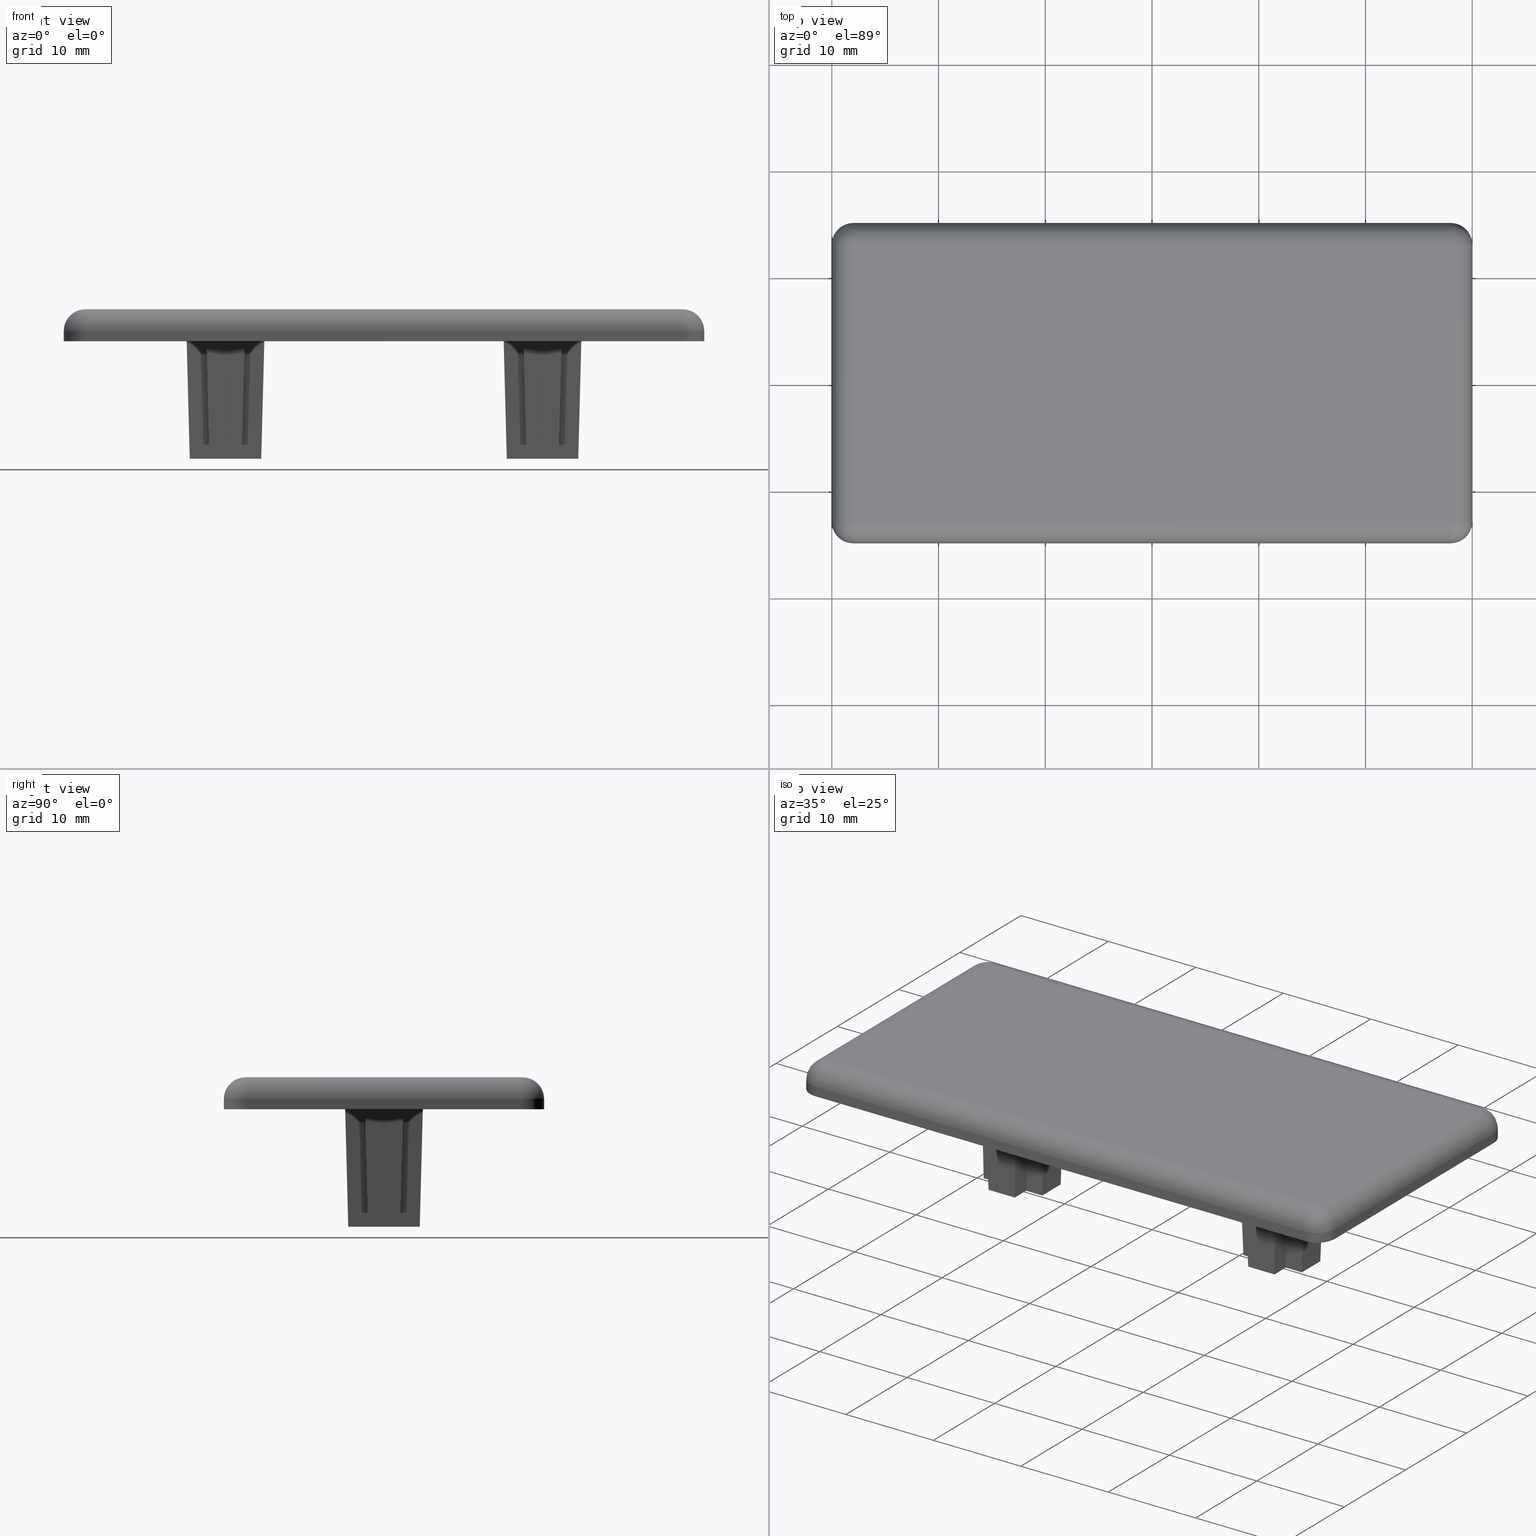
[diagram: canonical four-view strip — front | top / right | iso, engineering-drawing reading convention]
A machine part, canonical four-view strip (front | top / right | iso — engineering-drawing reading convention). The complete STEP part file that produces these views, byte-faithful:
ISO-10303-21;
HEADER;
/* Generated by software containing ST-Developer
 * from STEP Tools, Inc. (www.steptools.com) 
 */

FILE_DESCRIPTION(
/* description */ ('TAPPO 30X60 6C NERO'),
/* implementation_level */ '2;1');

FILE_NAME(
/* name */ 
'Q:\\Catalogo\\2_Accessori Dierre\\Per Download Web e catalogo cartace
o\\CATALOGO TAPPI DI CHIUSURA\\PAGINA 88\\DTPTR0000024.stp',
/* time_stamp */ '2018-10-26T11:01:08+02:00',
/* author */ ('fzagni'),
/* organization */ (''),
/* preprocessor_version */ 'ST-DEVELOPER v16.1',
/* originating_system */ 'Autodesk Inventor 2016',
/* authorisation */ '');

FILE_SCHEMA (('AUTOMOTIVE_DESIGN { 1 0 10303 214 3 1 1 }'));
ENDSEC;

DATA;
#10=MECHANICAL_DESIGN_GEOMETRIC_PRESENTATION_REPRESENTATION('',(#13),#1429);
#11=SHAPE_REPRESENTATION_RELATIONSHIP('SRR','None',#1438,#12);
#12=ADVANCED_BREP_SHAPE_REPRESENTATION('',(#14),#1428);
#13=STYLED_ITEM('',(#1447),#14);
#14=MANIFOLD_SOLID_BREP('Solido1',#877);
#15=CYLINDRICAL_SURFACE('',#919,2.);
#16=CYLINDRICAL_SURFACE('',#924,2.);
#17=CYLINDRICAL_SURFACE('',#929,2.);
#18=CYLINDRICAL_SURFACE('',#930,2.);
#19=CYLINDRICAL_SURFACE('',#935,2.);
#20=CYLINDRICAL_SURFACE('',#936,2.);
#21=CYLINDRICAL_SURFACE('',#937,2.);
#22=CYLINDRICAL_SURFACE('',#938,2.);
#23=SPHERICAL_SURFACE('',#915,2.);
#24=SPHERICAL_SURFACE('',#920,2.);
#25=SPHERICAL_SURFACE('',#925,2.);
#26=SPHERICAL_SURFACE('',#931,2.);
#27=CIRCLE('',#911,2.);
#28=CIRCLE('',#912,2.);
#29=CIRCLE('',#913,2.);
#30=CIRCLE('',#914,2.);
#31=CIRCLE('',#916,2.);
#32=CIRCLE('',#917,2.);
#33=CIRCLE('',#918,2.);
#34=CIRCLE('',#921,2.);
#35=CIRCLE('',#922,2.);
#36=CIRCLE('',#923,2.);
#37=CIRCLE('',#926,2.);
#38=CIRCLE('',#927,2.);
#39=CIRCLE('',#928,2.);
#40=CIRCLE('',#932,2.);
#41=CIRCLE('',#933,2.);
#42=CIRCLE('',#934,2.);
#43=FACE_BOUND('',#126,.T.);
#44=FACE_BOUND('',#127,.T.);
#45=FACE_BOUND('',#129,.T.);
#46=FACE_OUTER_BOUND('',#95,.T.);
#47=FACE_OUTER_BOUND('',#96,.T.);
#48=FACE_OUTER_BOUND('',#97,.T.);
#49=FACE_OUTER_BOUND('',#98,.T.);
#50=FACE_OUTER_BOUND('',#99,.T.);
#51=FACE_OUTER_BOUND('',#100,.T.);
#52=FACE_OUTER_BOUND('',#101,.T.);
#53=FACE_OUTER_BOUND('',#102,.T.);
#54=FACE_OUTER_BOUND('',#103,.T.);
#55=FACE_OUTER_BOUND('',#104,.T.);
#56=FACE_OUTER_BOUND('',#105,.T.);
#57=FACE_OUTER_BOUND('',#106,.T.);
#58=FACE_OUTER_BOUND('',#107,.T.);
#59=FACE_OUTER_BOUND('',#108,.T.);
#60=FACE_OUTER_BOUND('',#109,.T.);
#61=FACE_OUTER_BOUND('',#110,.T.);
#62=FACE_OUTER_BOUND('',#111,.T.);
#63=FACE_OUTER_BOUND('',#112,.T.);
#64=FACE_OUTER_BOUND('',#113,.T.);
#65=FACE_OUTER_BOUND('',#114,.T.);
#66=FACE_OUTER_BOUND('',#115,.T.);
#67=FACE_OUTER_BOUND('',#116,.T.);
#68=FACE_OUTER_BOUND('',#117,.T.);
#69=FACE_OUTER_BOUND('',#118,.T.);
#70=FACE_OUTER_BOUND('',#119,.T.);
#71=FACE_OUTER_BOUND('',#120,.T.);
#72=FACE_OUTER_BOUND('',#121,.T.);
#73=FACE_OUTER_BOUND('',#122,.T.);
#74=FACE_OUTER_BOUND('',#123,.T.);
#75=FACE_OUTER_BOUND('',#124,.T.);
#76=FACE_OUTER_BOUND('',#125,.T.);
#77=FACE_OUTER_BOUND('',#128,.T.);
#78=FACE_OUTER_BOUND('',#130,.T.);
#79=FACE_OUTER_BOUND('',#131,.T.);
#80=FACE_OUTER_BOUND('',#132,.T.);
#81=FACE_OUTER_BOUND('',#133,.T.);
#82=FACE_OUTER_BOUND('',#134,.T.);
#83=FACE_OUTER_BOUND('',#135,.T.);
#84=FACE_OUTER_BOUND('',#136,.T.);
#85=FACE_OUTER_BOUND('',#137,.T.);
#86=FACE_OUTER_BOUND('',#138,.T.);
#87=FACE_OUTER_BOUND('',#139,.T.);
#88=FACE_OUTER_BOUND('',#140,.T.);
#89=FACE_OUTER_BOUND('',#141,.T.);
#90=FACE_OUTER_BOUND('',#142,.T.);
#91=FACE_OUTER_BOUND('',#143,.T.);
#92=FACE_OUTER_BOUND('',#144,.T.);
#93=FACE_OUTER_BOUND('',#145,.T.);
#94=FACE_OUTER_BOUND('',#146,.T.);
#95=EDGE_LOOP('',(#551,#552,#553,#554,#555,#556,#557,#558,#559,#560,#561,
#562));
#96=EDGE_LOOP('',(#563,#564,#565,#566,#567,#568,#569,#570,#571,#572,#573,
#574));
#97=EDGE_LOOP('',(#575,#576,#577,#578));
#98=EDGE_LOOP('',(#579,#580,#581,#582));
#99=EDGE_LOOP('',(#583,#584,#585,#586));
#100=EDGE_LOOP('',(#587,#588,#589,#590));
#101=EDGE_LOOP('',(#591,#592,#593,#594));
#102=EDGE_LOOP('',(#595,#596,#597,#598));
#103=EDGE_LOOP('',(#599,#600,#601,#602));
#104=EDGE_LOOP('',(#603,#604,#605,#606));
#105=EDGE_LOOP('',(#607,#608,#609,#610));
#106=EDGE_LOOP('',(#611,#612,#613,#614));
#107=EDGE_LOOP('',(#615,#616,#617,#618));
#108=EDGE_LOOP('',(#619,#620,#621,#622));
#109=EDGE_LOOP('',(#623,#624,#625,#626));
#110=EDGE_LOOP('',(#627,#628,#629,#630));
#111=EDGE_LOOP('',(#631,#632,#633,#634));
#112=EDGE_LOOP('',(#635,#636,#637,#638));
#113=EDGE_LOOP('',(#639,#640,#641,#642));
#114=EDGE_LOOP('',(#643,#644,#645,#646));
#115=EDGE_LOOP('',(#647,#648,#649,#650));
#116=EDGE_LOOP('',(#651,#652,#653,#654));
#117=EDGE_LOOP('',(#655,#656,#657,#658));
#118=EDGE_LOOP('',(#659,#660,#661,#662));
#119=EDGE_LOOP('',(#663,#664,#665,#666));
#120=EDGE_LOOP('',(#667,#668,#669,#670));
#121=EDGE_LOOP('',(#671,#672,#673,#674));
#122=EDGE_LOOP('',(#675,#676,#677,#678));
#123=EDGE_LOOP('',(#679,#680,#681,#682));
#124=EDGE_LOOP('',(#683,#684,#685,#686));
#125=EDGE_LOOP('',(#687,#688,#689,#690));
#126=EDGE_LOOP('',(#691,#692,#693,#694,#695,#696,#697,#698,#699,#700,#701,
#702));
#127=EDGE_LOOP('',(#703,#704,#705,#706,#707,#708,#709,#710,#711,#712,#713,
#714));
#128=EDGE_LOOP('',(#715,#716,#717,#718,#719,#720,#721,#722));
#129=EDGE_LOOP('',(#723,#724,#725,#726));
#130=EDGE_LOOP('',(#727,#728,#729));
#131=EDGE_LOOP('',(#730,#731,#732,#733));
#132=EDGE_LOOP('',(#734,#735,#736));
#133=EDGE_LOOP('',(#737,#738,#739,#740));
#134=EDGE_LOOP('',(#741,#742,#743));
#135=EDGE_LOOP('',(#744,#745,#746,#747));
#136=EDGE_LOOP('',(#748,#749,#750,#751));
#137=EDGE_LOOP('',(#752,#753,#754));
#138=EDGE_LOOP('',(#755,#756,#757,#758));
#139=EDGE_LOOP('',(#759,#760,#761,#762));
#140=EDGE_LOOP('',(#763,#764,#765,#766));
#141=EDGE_LOOP('',(#767,#768,#769,#770));
#142=EDGE_LOOP('',(#771,#772,#773,#774));
#143=EDGE_LOOP('',(#775,#776,#777,#778));
#144=EDGE_LOOP('',(#779,#780,#781,#782));
#145=EDGE_LOOP('',(#783,#784,#785,#786));
#146=EDGE_LOOP('',(#787,#788,#789,#790));
#147=LINE('',#1184,#251);
#148=LINE('',#1186,#252);
#149=LINE('',#1188,#253);
#150=LINE('',#1190,#254);
#151=LINE('',#1192,#255);
#152=LINE('',#1194,#256);
#153=LINE('',#1196,#257);
#154=LINE('',#1198,#258);
#155=LINE('',#1200,#259);
#156=LINE('',#1202,#260);
#157=LINE('',#1204,#261);
#158=LINE('',#1205,#262);
#159=LINE('',#1209,#263);
#160=LINE('',#1211,#264);
#161=LINE('',#1213,#265);
#162=LINE('',#1215,#266);
#163=LINE('',#1217,#267);
#164=LINE('',#1219,#268);
#165=LINE('',#1221,#269);
#166=LINE('',#1223,#270);
#167=LINE('',#1225,#271);
#168=LINE('',#1227,#272);
#169=LINE('',#1229,#273);
#170=LINE('',#1230,#274);
#171=LINE('',#1233,#275);
#172=LINE('',#1235,#276);
#173=LINE('',#1236,#277);
#174=LINE('',#1239,#278);
#175=LINE('',#1240,#279);
#176=LINE('',#1243,#280);
#177=LINE('',#1244,#281);
#178=LINE('',#1247,#282);
#179=LINE('',#1248,#283);
#180=LINE('',#1251,#284);
#181=LINE('',#1252,#285);
#182=LINE('',#1255,#286);
#183=LINE('',#1256,#287);
#184=LINE('',#1259,#288);
#185=LINE('',#1260,#289);
#186=LINE('',#1263,#290);
#187=LINE('',#1264,#291);
#188=LINE('',#1267,#292);
#189=LINE('',#1268,#293);
#190=LINE('',#1271,#294);
#191=LINE('',#1272,#295);
#192=LINE('',#1275,#296);
#193=LINE('',#1276,#297);
#194=LINE('',#1278,#298);
#195=LINE('',#1281,#299);
#196=LINE('',#1283,#300);
#197=LINE('',#1284,#301);
#198=LINE('',#1287,#302);
#199=LINE('',#1288,#303);
#200=LINE('',#1291,#304);
#201=LINE('',#1292,#305);
#202=LINE('',#1295,#306);
#203=LINE('',#1296,#307);
#204=LINE('',#1299,#308);
#205=LINE('',#1300,#309);
#206=LINE('',#1303,#310);
#207=LINE('',#1304,#311);
#208=LINE('',#1307,#312);
#209=LINE('',#1308,#313);
#210=LINE('',#1311,#314);
#211=LINE('',#1312,#315);
#212=LINE('',#1315,#316);
#213=LINE('',#1316,#317);
#214=LINE('',#1319,#318);
#215=LINE('',#1320,#319);
#216=LINE('',#1323,#320);
#217=LINE('',#1324,#321);
#218=LINE('',#1326,#322);
#219=LINE('',#1330,#323);
#220=LINE('',#1332,#324);
#221=LINE('',#1334,#325);
#222=LINE('',#1335,#326);
#223=LINE('',#1338,#327);
#224=LINE('',#1340,#328);
#225=LINE('',#1341,#329);
#226=LINE('',#1344,#330);
#227=LINE('',#1346,#331);
#228=LINE('',#1347,#332);
#229=LINE('',#1349,#333);
#230=LINE('',#1350,#334);
#231=LINE('',#1357,#335);
#232=LINE('',#1361,#336);
#233=LINE('',#1365,#337);
#234=LINE('',#1368,#338);
#235=LINE('',#1377,#339);
#236=LINE('',#1378,#340);
#237=LINE('',#1387,#341);
#238=LINE('',#1388,#342);
#239=LINE('',#1397,#343);
#240=LINE('',#1398,#344);
#241=LINE('',#1400,#345);
#242=LINE('',#1401,#346);
#243=LINE('',#1410,#347);
#244=LINE('',#1411,#348);
#245=LINE('',#1413,#349);
#246=LINE('',#1414,#350);
#247=LINE('',#1416,#351);
#248=LINE('',#1417,#352);
#249=LINE('',#1419,#353);
#250=LINE('',#1420,#354);
#251=VECTOR('',#948,1.85);
#252=VECTOR('',#949,3.);
#253=VECTOR('',#950,1.85);
#254=VECTOR('',#951,1.85);
#255=VECTOR('',#952,3.);
#256=VECTOR('',#953,1.85);
#257=VECTOR('',#954,1.85);
#258=VECTOR('',#955,3.);
#259=VECTOR('',#956,1.85);
#260=VECTOR('',#957,1.85);
#261=VECTOR('',#958,3.);
#262=VECTOR('',#959,1.85);
#263=VECTOR('',#962,3.);
#264=VECTOR('',#963,1.85);
#265=VECTOR('',#964,1.85);
#266=VECTOR('',#965,3.);
#267=VECTOR('',#966,1.85);
#268=VECTOR('',#967,1.85);
#269=VECTOR('',#968,3.);
#270=VECTOR('',#969,1.85);
#271=VECTOR('',#970,1.85);
#272=VECTOR('',#971,3.);
#273=VECTOR('',#972,1.85);
#274=VECTOR('',#973,1.85);
#275=VECTOR('',#976,12.2083627041776);
#276=VECTOR('',#977,1.85000000000001);
#277=VECTOR('',#978,12.2083627041776);
#278=VECTOR('',#981,1.85);
#279=VECTOR('',#982,12.2083627041776);
#280=VECTOR('',#985,3.63893648628816);
#281=VECTOR('',#986,12.2083627041776);
#282=VECTOR('',#989,2.16946824314408);
#283=VECTOR('',#990,12.2041820683886);
#284=VECTOR('',#993,1.85);
#285=VECTOR('',#994,12.2041820683886);
#286=VECTOR('',#997,3.31946824314408);
#287=VECTOR('',#998,12.2083627041776);
#288=VECTOR('',#1001,1.85);
#289=VECTOR('',#1002,12.2083627041776);
#290=VECTOR('',#1005,1.53053175685592);
#291=VECTOR('',#1006,12.2041820683886);
#292=VECTOR('',#1009,3.63893648628816);
#293=VECTOR('',#1010,12.2041820683886);
#294=VECTOR('',#1013,1.53053175685592);
#295=VECTOR('',#1014,12.2083627041776);
#296=VECTOR('',#1017,1.85);
#297=VECTOR('',#1018,12.2083627041776);
#298=VECTOR('',#1021,3.63893648628817);
#299=VECTOR('',#1024,12.2083627041776);
#300=VECTOR('',#1025,3.63893648628816);
#301=VECTOR('',#1026,12.2083627041776);
#302=VECTOR('',#1029,1.85);
#303=VECTOR('',#1030,12.2083627041776);
#304=VECTOR('',#1033,1.85);
#305=VECTOR('',#1034,12.2083627041776);
#306=VECTOR('',#1037,3.63893648628816);
#307=VECTOR('',#1038,12.2083627041776);
#308=VECTOR('',#1041,1.85);
#309=VECTOR('',#1042,12.2083627041776);
#310=VECTOR('',#1045,1.85);
#311=VECTOR('',#1046,12.2083627041776);
#312=VECTOR('',#1049,3.63893648628816);
#313=VECTOR('',#1050,12.2083627041776);
#314=VECTOR('',#1053,1.85);
#315=VECTOR('',#1054,12.2083627041776);
#316=VECTOR('',#1057,1.85);
#317=VECTOR('',#1058,12.2083627041776);
#318=VECTOR('',#1061,3.63893648628816);
#319=VECTOR('',#1062,12.2083627041776);
#320=VECTOR('',#1065,1.85);
#321=VECTOR('',#1066,12.2083627041776);
#322=VECTOR('',#1069,1.85);
#323=VECTOR('',#1072,26.);
#324=VECTOR('',#1073,1.2);
#325=VECTOR('',#1074,26.);
#326=VECTOR('',#1075,1.2);
#327=VECTOR('',#1078,56.);
#328=VECTOR('',#1079,1.2);
#329=VECTOR('',#1080,56.);
#330=VECTOR('',#1083,26.);
#331=VECTOR('',#1084,1.2);
#332=VECTOR('',#1085,26.);
#333=VECTOR('',#1088,56.);
#334=VECTOR('',#1089,56.);
#335=VECTOR('',#1096,26.);
#336=VECTOR('',#1099,56.);
#337=VECTOR('',#1102,26.);
#338=VECTOR('',#1105,56.);
#339=VECTOR('',#1116,1.);
#340=VECTOR('',#1117,1.);
#341=VECTOR('',#1128,1.);
#342=VECTOR('',#1129,1.);
#343=VECTOR('',#1140,1.);
#344=VECTOR('',#1141,1.);
#345=VECTOR('',#1144,26.);
#346=VECTOR('',#1145,26.);
#347=VECTOR('',#1156,1.);
#348=VECTOR('',#1157,1.);
#349=VECTOR('',#1160,56.);
#350=VECTOR('',#1161,56.);
#351=VECTOR('',#1164,26.);
#352=VECTOR('',#1165,26.);
#353=VECTOR('',#1168,56.);
#354=VECTOR('',#1169,56.);
#355=VERTEX_POINT('',#1182);
#356=VERTEX_POINT('',#1183);
#357=VERTEX_POINT('',#1185);
#358=VERTEX_POINT('',#1187);
#359=VERTEX_POINT('',#1189);
#360=VERTEX_POINT('',#1191);
#361=VERTEX_POINT('',#1193);
#362=VERTEX_POINT('',#1195);
#363=VERTEX_POINT('',#1197);
#364=VERTEX_POINT('',#1199);
#365=VERTEX_POINT('',#1201);
#366=VERTEX_POINT('',#1203);
#367=VERTEX_POINT('',#1207);
#368=VERTEX_POINT('',#1208);
#369=VERTEX_POINT('',#1210);
#370=VERTEX_POINT('',#1212);
#371=VERTEX_POINT('',#1214);
#372=VERTEX_POINT('',#1216);
#373=VERTEX_POINT('',#1218);
#374=VERTEX_POINT('',#1220);
#375=VERTEX_POINT('',#1222);
#376=VERTEX_POINT('',#1224);
#377=VERTEX_POINT('',#1226);
#378=VERTEX_POINT('',#1228);
#379=VERTEX_POINT('',#1232);
#380=VERTEX_POINT('',#1234);
#381=VERTEX_POINT('',#1238);
#382=VERTEX_POINT('',#1242);
#383=VERTEX_POINT('',#1246);
#384=VERTEX_POINT('',#1250);
#385=VERTEX_POINT('',#1254);
#386=VERTEX_POINT('',#1258);
#387=VERTEX_POINT('',#1262);
#388=VERTEX_POINT('',#1266);
#389=VERTEX_POINT('',#1270);
#390=VERTEX_POINT('',#1274);
#391=VERTEX_POINT('',#1280);
#392=VERTEX_POINT('',#1282);
#393=VERTEX_POINT('',#1286);
#394=VERTEX_POINT('',#1290);
#395=VERTEX_POINT('',#1294);
#396=VERTEX_POINT('',#1298);
#397=VERTEX_POINT('',#1302);
#398=VERTEX_POINT('',#1306);
#399=VERTEX_POINT('',#1310);
#400=VERTEX_POINT('',#1314);
#401=VERTEX_POINT('',#1318);
#402=VERTEX_POINT('',#1322);
#403=VERTEX_POINT('',#1328);
#404=VERTEX_POINT('',#1329);
#405=VERTEX_POINT('',#1331);
#406=VERTEX_POINT('',#1333);
#407=VERTEX_POINT('',#1337);
#408=VERTEX_POINT('',#1339);
#409=VERTEX_POINT('',#1343);
#410=VERTEX_POINT('',#1345);
#411=VERTEX_POINT('',#1353);
#412=VERTEX_POINT('',#1354);
#413=VERTEX_POINT('',#1356);
#414=VERTEX_POINT('',#1358);
#415=VERTEX_POINT('',#1360);
#416=VERTEX_POINT('',#1362);
#417=VERTEX_POINT('',#1364);
#418=VERTEX_POINT('',#1366);
#419=VERTEX_POINT('',#1370);
#420=VERTEX_POINT('',#1371);
#421=VERTEX_POINT('',#1373);
#422=VERTEX_POINT('',#1380);
#423=VERTEX_POINT('',#1381);
#424=VERTEX_POINT('',#1383);
#425=VERTEX_POINT('',#1390);
#426=VERTEX_POINT('',#1391);
#427=VERTEX_POINT('',#1393);
#428=VERTEX_POINT('',#1403);
#429=VERTEX_POINT('',#1404);
#430=VERTEX_POINT('',#1406);
#431=EDGE_CURVE('',#355,#356,#147,.T.);
#432=EDGE_CURVE('',#356,#357,#148,.T.);
#433=EDGE_CURVE('',#357,#358,#149,.T.);
#434=EDGE_CURVE('',#358,#359,#150,.T.);
#435=EDGE_CURVE('',#359,#360,#151,.T.);
#436=EDGE_CURVE('',#360,#361,#152,.T.);
#437=EDGE_CURVE('',#361,#362,#153,.T.);
#438=EDGE_CURVE('',#362,#363,#154,.T.);
#439=EDGE_CURVE('',#363,#364,#155,.T.);
#440=EDGE_CURVE('',#364,#365,#156,.T.);
#441=EDGE_CURVE('',#365,#366,#157,.T.);
#442=EDGE_CURVE('',#366,#355,#158,.T.);
#443=EDGE_CURVE('',#367,#368,#159,.T.);
#444=EDGE_CURVE('',#368,#369,#160,.T.);
#445=EDGE_CURVE('',#369,#370,#161,.T.);
#446=EDGE_CURVE('',#370,#371,#162,.T.);
#447=EDGE_CURVE('',#371,#372,#163,.T.);
#448=EDGE_CURVE('',#372,#373,#164,.T.);
#449=EDGE_CURVE('',#373,#374,#165,.T.);
#450=EDGE_CURVE('',#374,#375,#166,.T.);
#451=EDGE_CURVE('',#375,#376,#167,.T.);
#452=EDGE_CURVE('',#376,#377,#168,.T.);
#453=EDGE_CURVE('',#377,#378,#169,.T.);
#454=EDGE_CURVE('',#378,#367,#170,.T.);
#455=EDGE_CURVE('',#368,#379,#171,.F.);
#456=EDGE_CURVE('',#379,#380,#172,.T.);
#457=EDGE_CURVE('',#380,#369,#173,.F.);
#458=EDGE_CURVE('',#380,#381,#174,.T.);
#459=EDGE_CURVE('',#381,#370,#175,.T.);
#460=EDGE_CURVE('',#381,#382,#176,.T.);
#461=EDGE_CURVE('',#382,#371,#177,.T.);
#462=EDGE_CURVE('',#382,#383,#178,.T.);
#463=EDGE_CURVE('',#383,#372,#179,.F.);
#464=EDGE_CURVE('',#383,#384,#180,.T.);
#465=EDGE_CURVE('',#384,#373,#181,.F.);
#466=EDGE_CURVE('',#384,#385,#182,.T.);
#467=EDGE_CURVE('',#385,#374,#183,.T.);
#468=EDGE_CURVE('',#385,#386,#184,.T.);
#469=EDGE_CURVE('',#386,#375,#185,.F.);
#470=EDGE_CURVE('',#386,#387,#186,.T.);
#471=EDGE_CURVE('',#387,#376,#187,.T.);
#472=EDGE_CURVE('',#387,#388,#188,.T.);
#473=EDGE_CURVE('',#388,#377,#189,.F.);
#474=EDGE_CURVE('',#388,#389,#190,.T.);
#475=EDGE_CURVE('',#389,#378,#191,.F.);
#476=EDGE_CURVE('',#389,#390,#192,.T.);
#477=EDGE_CURVE('',#390,#367,#193,.T.);
#478=EDGE_CURVE('',#390,#379,#194,.T.);
#479=EDGE_CURVE('',#356,#391,#195,.F.);
#480=EDGE_CURVE('',#391,#392,#196,.T.);
#481=EDGE_CURVE('',#392,#357,#197,.T.);
#482=EDGE_CURVE('',#392,#393,#198,.T.);
#483=EDGE_CURVE('',#393,#358,#199,.F.);
#484=EDGE_CURVE('',#393,#394,#200,.T.);
#485=EDGE_CURVE('',#394,#359,#201,.T.);
#486=EDGE_CURVE('',#394,#395,#202,.T.);
#487=EDGE_CURVE('',#395,#360,#203,.T.);
#488=EDGE_CURVE('',#395,#396,#204,.T.);
#489=EDGE_CURVE('',#396,#361,#205,.T.);
#490=EDGE_CURVE('',#396,#397,#206,.T.);
#491=EDGE_CURVE('',#397,#362,#207,.F.);
#492=EDGE_CURVE('',#397,#398,#208,.T.);
#493=EDGE_CURVE('',#398,#363,#209,.T.);
#494=EDGE_CURVE('',#398,#399,#210,.T.);
#495=EDGE_CURVE('',#399,#364,#211,.F.);
#496=EDGE_CURVE('',#399,#400,#212,.T.);
#497=EDGE_CURVE('',#400,#365,#213,.T.);
#498=EDGE_CURVE('',#400,#401,#214,.T.);
#499=EDGE_CURVE('',#401,#366,#215,.T.);
#500=EDGE_CURVE('',#401,#402,#216,.T.);
#501=EDGE_CURVE('',#402,#355,#217,.F.);
#502=EDGE_CURVE('',#402,#391,#218,.T.);
#503=EDGE_CURVE('',#403,#404,#219,.T.);
#504=EDGE_CURVE('',#403,#405,#220,.T.);
#505=EDGE_CURVE('',#405,#406,#221,.T.);
#506=EDGE_CURVE('',#404,#406,#222,.T.);
#507=EDGE_CURVE('',#407,#403,#223,.T.);
#508=EDGE_CURVE('',#407,#408,#224,.T.);
#509=EDGE_CURVE('',#408,#405,#225,.T.);
#510=EDGE_CURVE('',#409,#407,#226,.T.);
#511=EDGE_CURVE('',#409,#410,#227,.T.);
#512=EDGE_CURVE('',#410,#408,#228,.T.);
#513=EDGE_CURVE('',#404,#409,#229,.T.);
#514=EDGE_CURVE('',#406,#410,#230,.T.);
#515=EDGE_CURVE('',#411,#412,#27,.T.);
#516=EDGE_CURVE('',#411,#413,#231,.T.);
#517=EDGE_CURVE('',#414,#413,#28,.T.);
#518=EDGE_CURVE('',#414,#415,#232,.T.);
#519=EDGE_CURVE('',#416,#415,#29,.T.);
#520=EDGE_CURVE('',#416,#417,#233,.T.);
#521=EDGE_CURVE('',#418,#417,#30,.T.);
#522=EDGE_CURVE('',#418,#412,#234,.T.);
#523=EDGE_CURVE('',#419,#420,#31,.F.);
#524=EDGE_CURVE('',#421,#419,#32,.F.);
#525=EDGE_CURVE('',#420,#421,#33,.F.);
#526=EDGE_CURVE('',#412,#421,#235,.T.);
#527=EDGE_CURVE('',#419,#411,#236,.T.);
#528=EDGE_CURVE('',#422,#423,#34,.F.);
#529=EDGE_CURVE('',#424,#422,#35,.F.);
#530=EDGE_CURVE('',#423,#424,#36,.F.);
#531=EDGE_CURVE('',#417,#424,#237,.T.);
#532=EDGE_CURVE('',#422,#418,#238,.T.);
#533=EDGE_CURVE('',#425,#426,#37,.F.);
#534=EDGE_CURVE('',#427,#425,#38,.F.);
#535=EDGE_CURVE('',#426,#427,#39,.F.);
#536=EDGE_CURVE('',#413,#427,#239,.T.);
#537=EDGE_CURVE('',#425,#414,#240,.T.);
#538=EDGE_CURVE('',#420,#426,#241,.T.);
#539=EDGE_CURVE('',#427,#419,#242,.T.);
#540=EDGE_CURVE('',#428,#429,#40,.F.);
#541=EDGE_CURVE('',#430,#428,#41,.F.);
#542=EDGE_CURVE('',#429,#430,#42,.F.);
#543=EDGE_CURVE('',#415,#430,#243,.T.);
#544=EDGE_CURVE('',#428,#416,#244,.T.);
#545=EDGE_CURVE('',#426,#429,#245,.T.);
#546=EDGE_CURVE('',#430,#425,#246,.T.);
#547=EDGE_CURVE('',#429,#423,#247,.T.);
#548=EDGE_CURVE('',#424,#428,#248,.T.);
#549=EDGE_CURVE('',#423,#420,#249,.T.);
#550=EDGE_CURVE('',#421,#422,#250,.T.);
#551=ORIENTED_EDGE('',*,*,#431,.T.);
#552=ORIENTED_EDGE('',*,*,#432,.T.);
#553=ORIENTED_EDGE('',*,*,#433,.T.);
#554=ORIENTED_EDGE('',*,*,#434,.T.);
#555=ORIENTED_EDGE('',*,*,#435,.T.);
#556=ORIENTED_EDGE('',*,*,#436,.T.);
#557=ORIENTED_EDGE('',*,*,#437,.T.);
#558=ORIENTED_EDGE('',*,*,#438,.T.);
#559=ORIENTED_EDGE('',*,*,#439,.T.);
#560=ORIENTED_EDGE('',*,*,#440,.T.);
#561=ORIENTED_EDGE('',*,*,#441,.T.);
#562=ORIENTED_EDGE('',*,*,#442,.T.);
#563=ORIENTED_EDGE('',*,*,#443,.T.);
#564=ORIENTED_EDGE('',*,*,#444,.T.);
#565=ORIENTED_EDGE('',*,*,#445,.T.);
#566=ORIENTED_EDGE('',*,*,#446,.T.);
#567=ORIENTED_EDGE('',*,*,#447,.T.);
#568=ORIENTED_EDGE('',*,*,#448,.T.);
#569=ORIENTED_EDGE('',*,*,#449,.T.);
#570=ORIENTED_EDGE('',*,*,#450,.T.);
#571=ORIENTED_EDGE('',*,*,#451,.T.);
#572=ORIENTED_EDGE('',*,*,#452,.T.);
#573=ORIENTED_EDGE('',*,*,#453,.T.);
#574=ORIENTED_EDGE('',*,*,#454,.T.);
#575=ORIENTED_EDGE('',*,*,#455,.T.);
#576=ORIENTED_EDGE('',*,*,#456,.T.);
#577=ORIENTED_EDGE('',*,*,#457,.T.);
#578=ORIENTED_EDGE('',*,*,#444,.F.);
#579=ORIENTED_EDGE('',*,*,#457,.F.);
#580=ORIENTED_EDGE('',*,*,#458,.T.);
#581=ORIENTED_EDGE('',*,*,#459,.T.);
#582=ORIENTED_EDGE('',*,*,#445,.F.);
#583=ORIENTED_EDGE('',*,*,#459,.F.);
#584=ORIENTED_EDGE('',*,*,#460,.T.);
#585=ORIENTED_EDGE('',*,*,#461,.T.);
#586=ORIENTED_EDGE('',*,*,#446,.F.);
#587=ORIENTED_EDGE('',*,*,#461,.F.);
#588=ORIENTED_EDGE('',*,*,#462,.T.);
#589=ORIENTED_EDGE('',*,*,#463,.T.);
#590=ORIENTED_EDGE('',*,*,#447,.F.);
#591=ORIENTED_EDGE('',*,*,#463,.F.);
#592=ORIENTED_EDGE('',*,*,#464,.T.);
#593=ORIENTED_EDGE('',*,*,#465,.T.);
#594=ORIENTED_EDGE('',*,*,#448,.F.);
#595=ORIENTED_EDGE('',*,*,#465,.F.);
#596=ORIENTED_EDGE('',*,*,#466,.T.);
#597=ORIENTED_EDGE('',*,*,#467,.T.);
#598=ORIENTED_EDGE('',*,*,#449,.F.);
#599=ORIENTED_EDGE('',*,*,#467,.F.);
#600=ORIENTED_EDGE('',*,*,#468,.T.);
#601=ORIENTED_EDGE('',*,*,#469,.T.);
#602=ORIENTED_EDGE('',*,*,#450,.F.);
#603=ORIENTED_EDGE('',*,*,#469,.F.);
#604=ORIENTED_EDGE('',*,*,#470,.T.);
#605=ORIENTED_EDGE('',*,*,#471,.T.);
#606=ORIENTED_EDGE('',*,*,#451,.F.);
#607=ORIENTED_EDGE('',*,*,#471,.F.);
#608=ORIENTED_EDGE('',*,*,#472,.T.);
#609=ORIENTED_EDGE('',*,*,#473,.T.);
#610=ORIENTED_EDGE('',*,*,#452,.F.);
#611=ORIENTED_EDGE('',*,*,#473,.F.);
#612=ORIENTED_EDGE('',*,*,#474,.T.);
#613=ORIENTED_EDGE('',*,*,#475,.T.);
#614=ORIENTED_EDGE('',*,*,#453,.F.);
#615=ORIENTED_EDGE('',*,*,#475,.F.);
#616=ORIENTED_EDGE('',*,*,#476,.T.);
#617=ORIENTED_EDGE('',*,*,#477,.T.);
#618=ORIENTED_EDGE('',*,*,#454,.F.);
#619=ORIENTED_EDGE('',*,*,#477,.F.);
#620=ORIENTED_EDGE('',*,*,#478,.T.);
#621=ORIENTED_EDGE('',*,*,#455,.F.);
#622=ORIENTED_EDGE('',*,*,#443,.F.);
#623=ORIENTED_EDGE('',*,*,#479,.T.);
#624=ORIENTED_EDGE('',*,*,#480,.T.);
#625=ORIENTED_EDGE('',*,*,#481,.T.);
#626=ORIENTED_EDGE('',*,*,#432,.F.);
#627=ORIENTED_EDGE('',*,*,#481,.F.);
#628=ORIENTED_EDGE('',*,*,#482,.T.);
#629=ORIENTED_EDGE('',*,*,#483,.T.);
#630=ORIENTED_EDGE('',*,*,#433,.F.);
#631=ORIENTED_EDGE('',*,*,#483,.F.);
#632=ORIENTED_EDGE('',*,*,#484,.T.);
#633=ORIENTED_EDGE('',*,*,#485,.T.);
#634=ORIENTED_EDGE('',*,*,#434,.F.);
#635=ORIENTED_EDGE('',*,*,#485,.F.);
#636=ORIENTED_EDGE('',*,*,#486,.T.);
#637=ORIENTED_EDGE('',*,*,#487,.T.);
#638=ORIENTED_EDGE('',*,*,#435,.F.);
#639=ORIENTED_EDGE('',*,*,#487,.F.);
#640=ORIENTED_EDGE('',*,*,#488,.T.);
#641=ORIENTED_EDGE('',*,*,#489,.T.);
#642=ORIENTED_EDGE('',*,*,#436,.F.);
#643=ORIENTED_EDGE('',*,*,#489,.F.);
#644=ORIENTED_EDGE('',*,*,#490,.T.);
#645=ORIENTED_EDGE('',*,*,#491,.T.);
#646=ORIENTED_EDGE('',*,*,#437,.F.);
#647=ORIENTED_EDGE('',*,*,#491,.F.);
#648=ORIENTED_EDGE('',*,*,#492,.T.);
#649=ORIENTED_EDGE('',*,*,#493,.T.);
#650=ORIENTED_EDGE('',*,*,#438,.F.);
#651=ORIENTED_EDGE('',*,*,#493,.F.);
#652=ORIENTED_EDGE('',*,*,#494,.T.);
#653=ORIENTED_EDGE('',*,*,#495,.T.);
#654=ORIENTED_EDGE('',*,*,#439,.F.);
#655=ORIENTED_EDGE('',*,*,#495,.F.);
#656=ORIENTED_EDGE('',*,*,#496,.T.);
#657=ORIENTED_EDGE('',*,*,#497,.T.);
#658=ORIENTED_EDGE('',*,*,#440,.F.);
#659=ORIENTED_EDGE('',*,*,#497,.F.);
#660=ORIENTED_EDGE('',*,*,#498,.T.);
#661=ORIENTED_EDGE('',*,*,#499,.T.);
#662=ORIENTED_EDGE('',*,*,#441,.F.);
#663=ORIENTED_EDGE('',*,*,#499,.F.);
#664=ORIENTED_EDGE('',*,*,#500,.T.);
#665=ORIENTED_EDGE('',*,*,#501,.T.);
#666=ORIENTED_EDGE('',*,*,#442,.F.);
#667=ORIENTED_EDGE('',*,*,#501,.F.);
#668=ORIENTED_EDGE('',*,*,#502,.T.);
#669=ORIENTED_EDGE('',*,*,#479,.F.);
#670=ORIENTED_EDGE('',*,*,#431,.F.);
#671=ORIENTED_EDGE('',*,*,#503,.F.);
#672=ORIENTED_EDGE('',*,*,#504,.T.);
#673=ORIENTED_EDGE('',*,*,#505,.T.);
#674=ORIENTED_EDGE('',*,*,#506,.F.);
#675=ORIENTED_EDGE('',*,*,#507,.F.);
#676=ORIENTED_EDGE('',*,*,#508,.T.);
#677=ORIENTED_EDGE('',*,*,#509,.T.);
#678=ORIENTED_EDGE('',*,*,#504,.F.);
#679=ORIENTED_EDGE('',*,*,#510,.F.);
#680=ORIENTED_EDGE('',*,*,#511,.T.);
#681=ORIENTED_EDGE('',*,*,#512,.T.);
#682=ORIENTED_EDGE('',*,*,#508,.F.);
#683=ORIENTED_EDGE('',*,*,#513,.F.);
#684=ORIENTED_EDGE('',*,*,#506,.T.);
#685=ORIENTED_EDGE('',*,*,#514,.T.);
#686=ORIENTED_EDGE('',*,*,#511,.F.);
#687=ORIENTED_EDGE('',*,*,#514,.F.);
#688=ORIENTED_EDGE('',*,*,#505,.F.);
#689=ORIENTED_EDGE('',*,*,#509,.F.);
#690=ORIENTED_EDGE('',*,*,#512,.F.);
#691=ORIENTED_EDGE('',*,*,#456,.F.);
#692=ORIENTED_EDGE('',*,*,#478,.F.);
#693=ORIENTED_EDGE('',*,*,#476,.F.);
#694=ORIENTED_EDGE('',*,*,#474,.F.);
#695=ORIENTED_EDGE('',*,*,#472,.F.);
#696=ORIENTED_EDGE('',*,*,#470,.F.);
#697=ORIENTED_EDGE('',*,*,#468,.F.);
#698=ORIENTED_EDGE('',*,*,#466,.F.);
#699=ORIENTED_EDGE('',*,*,#464,.F.);
#700=ORIENTED_EDGE('',*,*,#462,.F.);
#701=ORIENTED_EDGE('',*,*,#460,.F.);
#702=ORIENTED_EDGE('',*,*,#458,.F.);
#703=ORIENTED_EDGE('',*,*,#480,.F.);
#704=ORIENTED_EDGE('',*,*,#502,.F.);
#705=ORIENTED_EDGE('',*,*,#500,.F.);
#706=ORIENTED_EDGE('',*,*,#498,.F.);
#707=ORIENTED_EDGE('',*,*,#496,.F.);
#708=ORIENTED_EDGE('',*,*,#494,.F.);
#709=ORIENTED_EDGE('',*,*,#492,.F.);
#710=ORIENTED_EDGE('',*,*,#490,.F.);
#711=ORIENTED_EDGE('',*,*,#488,.F.);
#712=ORIENTED_EDGE('',*,*,#486,.F.);
#713=ORIENTED_EDGE('',*,*,#484,.F.);
#714=ORIENTED_EDGE('',*,*,#482,.F.);
#715=ORIENTED_EDGE('',*,*,#515,.F.);
#716=ORIENTED_EDGE('',*,*,#516,.T.);
#717=ORIENTED_EDGE('',*,*,#517,.F.);
#718=ORIENTED_EDGE('',*,*,#518,.T.);
#719=ORIENTED_EDGE('',*,*,#519,.F.);
#720=ORIENTED_EDGE('',*,*,#520,.T.);
#721=ORIENTED_EDGE('',*,*,#521,.F.);
#722=ORIENTED_EDGE('',*,*,#522,.T.);
#723=ORIENTED_EDGE('',*,*,#503,.T.);
#724=ORIENTED_EDGE('',*,*,#513,.T.);
#725=ORIENTED_EDGE('',*,*,#510,.T.);
#726=ORIENTED_EDGE('',*,*,#507,.T.);
#727=ORIENTED_EDGE('',*,*,#523,.F.);
#728=ORIENTED_EDGE('',*,*,#524,.F.);
#729=ORIENTED_EDGE('',*,*,#525,.F.);
#730=ORIENTED_EDGE('',*,*,#515,.T.);
#731=ORIENTED_EDGE('',*,*,#526,.T.);
#732=ORIENTED_EDGE('',*,*,#524,.T.);
#733=ORIENTED_EDGE('',*,*,#527,.T.);
#734=ORIENTED_EDGE('',*,*,#528,.F.);
#735=ORIENTED_EDGE('',*,*,#529,.F.);
#736=ORIENTED_EDGE('',*,*,#530,.F.);
#737=ORIENTED_EDGE('',*,*,#521,.T.);
#738=ORIENTED_EDGE('',*,*,#531,.T.);
#739=ORIENTED_EDGE('',*,*,#529,.T.);
#740=ORIENTED_EDGE('',*,*,#532,.T.);
#741=ORIENTED_EDGE('',*,*,#533,.F.);
#742=ORIENTED_EDGE('',*,*,#534,.F.);
#743=ORIENTED_EDGE('',*,*,#535,.F.);
#744=ORIENTED_EDGE('',*,*,#517,.T.);
#745=ORIENTED_EDGE('',*,*,#536,.T.);
#746=ORIENTED_EDGE('',*,*,#534,.T.);
#747=ORIENTED_EDGE('',*,*,#537,.T.);
#748=ORIENTED_EDGE('',*,*,#523,.T.);
#749=ORIENTED_EDGE('',*,*,#538,.T.);
#750=ORIENTED_EDGE('',*,*,#535,.T.);
#751=ORIENTED_EDGE('',*,*,#539,.T.);
#752=ORIENTED_EDGE('',*,*,#540,.F.);
#753=ORIENTED_EDGE('',*,*,#541,.F.);
#754=ORIENTED_EDGE('',*,*,#542,.F.);
#755=ORIENTED_EDGE('',*,*,#519,.T.);
#756=ORIENTED_EDGE('',*,*,#543,.T.);
#757=ORIENTED_EDGE('',*,*,#541,.T.);
#758=ORIENTED_EDGE('',*,*,#544,.T.);
#759=ORIENTED_EDGE('',*,*,#533,.T.);
#760=ORIENTED_EDGE('',*,*,#545,.T.);
#761=ORIENTED_EDGE('',*,*,#542,.T.);
#762=ORIENTED_EDGE('',*,*,#546,.T.);
#763=ORIENTED_EDGE('',*,*,#540,.T.);
#764=ORIENTED_EDGE('',*,*,#547,.T.);
#765=ORIENTED_EDGE('',*,*,#530,.T.);
#766=ORIENTED_EDGE('',*,*,#548,.T.);
#767=ORIENTED_EDGE('',*,*,#528,.T.);
#768=ORIENTED_EDGE('',*,*,#549,.T.);
#769=ORIENTED_EDGE('',*,*,#525,.T.);
#770=ORIENTED_EDGE('',*,*,#550,.T.);
#771=ORIENTED_EDGE('',*,*,#527,.F.);
#772=ORIENTED_EDGE('',*,*,#539,.F.);
#773=ORIENTED_EDGE('',*,*,#536,.F.);
#774=ORIENTED_EDGE('',*,*,#516,.F.);
#775=ORIENTED_EDGE('',*,*,#537,.F.);
#776=ORIENTED_EDGE('',*,*,#546,.F.);
#777=ORIENTED_EDGE('',*,*,#543,.F.);
#778=ORIENTED_EDGE('',*,*,#518,.F.);
#779=ORIENTED_EDGE('',*,*,#538,.F.);
#780=ORIENTED_EDGE('',*,*,#549,.F.);
#781=ORIENTED_EDGE('',*,*,#547,.F.);
#782=ORIENTED_EDGE('',*,*,#545,.F.);
#783=ORIENTED_EDGE('',*,*,#531,.F.);
#784=ORIENTED_EDGE('',*,*,#520,.F.);
#785=ORIENTED_EDGE('',*,*,#544,.F.);
#786=ORIENTED_EDGE('',*,*,#548,.F.);
#787=ORIENTED_EDGE('',*,*,#526,.F.);
#788=ORIENTED_EDGE('',*,*,#522,.F.);
#789=ORIENTED_EDGE('',*,*,#532,.F.);
#790=ORIENTED_EDGE('',*,*,#550,.F.);
#791=PLANE('',#879);
#792=PLANE('',#880);
#793=PLANE('',#881);
#794=PLANE('',#882);
#795=PLANE('',#883);
#796=PLANE('',#884);
#797=PLANE('',#885);
#798=PLANE('',#886);
#799=PLANE('',#887);
#800=PLANE('',#888);
#801=PLANE('',#889);
#802=PLANE('',#890);
#803=PLANE('',#891);
#804=PLANE('',#892);
#805=PLANE('',#893);
#806=PLANE('',#894);
#807=PLANE('',#895);
#808=PLANE('',#896);
#809=PLANE('',#897);
#810=PLANE('',#898);
#811=PLANE('',#899);
#812=PLANE('',#900);
#813=PLANE('',#901);
#814=PLANE('',#902);
#815=PLANE('',#903);
#816=PLANE('',#904);
#817=PLANE('',#905);
#818=PLANE('',#906);
#819=PLANE('',#907);
#820=PLANE('',#908);
#821=PLANE('',#909);
#822=PLANE('',#910);
#823=PLANE('',#939);
#824=PLANE('',#940);
#825=PLANE('',#941);
#826=PLANE('',#942);
#827=PLANE('',#943);
#828=ADVANCED_FACE('',(#46),#791,.T.);
#829=ADVANCED_FACE('',(#47),#792,.T.);
#830=ADVANCED_FACE('',(#48),#793,.T.);
#831=ADVANCED_FACE('',(#49),#794,.T.);
#832=ADVANCED_FACE('',(#50),#795,.T.);
#833=ADVANCED_FACE('',(#51),#796,.T.);
#834=ADVANCED_FACE('',(#52),#797,.T.);
#835=ADVANCED_FACE('',(#53),#798,.T.);
#836=ADVANCED_FACE('',(#54),#799,.T.);
#837=ADVANCED_FACE('',(#55),#800,.T.);
#838=ADVANCED_FACE('',(#56),#801,.T.);
#839=ADVANCED_FACE('',(#57),#802,.T.);
#840=ADVANCED_FACE('',(#58),#803,.T.);
#841=ADVANCED_FACE('',(#59),#804,.T.);
#842=ADVANCED_FACE('',(#60),#805,.T.);
#843=ADVANCED_FACE('',(#61),#806,.T.);
#844=ADVANCED_FACE('',(#62),#807,.T.);
#845=ADVANCED_FACE('',(#63),#808,.T.);
#846=ADVANCED_FACE('',(#64),#809,.T.);
#847=ADVANCED_FACE('',(#65),#810,.T.);
#848=ADVANCED_FACE('',(#66),#811,.T.);
#849=ADVANCED_FACE('',(#67),#812,.T.);
#850=ADVANCED_FACE('',(#68),#813,.T.);
#851=ADVANCED_FACE('',(#69),#814,.T.);
#852=ADVANCED_FACE('',(#70),#815,.T.);
#853=ADVANCED_FACE('',(#71),#816,.T.);
#854=ADVANCED_FACE('',(#72),#817,.F.);
#855=ADVANCED_FACE('',(#73),#818,.F.);
#856=ADVANCED_FACE('',(#74),#819,.F.);
#857=ADVANCED_FACE('',(#75),#820,.F.);
#858=ADVANCED_FACE('',(#76,#43,#44),#821,.F.);
#859=ADVANCED_FACE('',(#77,#45),#822,.F.);
#860=ADVANCED_FACE('',(#78),#23,.T.);
#861=ADVANCED_FACE('',(#79),#15,.T.);
#862=ADVANCED_FACE('',(#80),#24,.T.);
#863=ADVANCED_FACE('',(#81),#16,.T.);
#864=ADVANCED_FACE('',(#82),#25,.T.);
#865=ADVANCED_FACE('',(#83),#17,.T.);
#866=ADVANCED_FACE('',(#84),#18,.T.);
#867=ADVANCED_FACE('',(#85),#26,.T.);
#868=ADVANCED_FACE('',(#86),#19,.T.);
#869=ADVANCED_FACE('',(#87),#20,.T.);
#870=ADVANCED_FACE('',(#88),#21,.T.);
#871=ADVANCED_FACE('',(#89),#22,.T.);
#872=ADVANCED_FACE('',(#90),#823,.T.);
#873=ADVANCED_FACE('',(#91),#824,.T.);
#874=ADVANCED_FACE('',(#92),#825,.T.);
#875=ADVANCED_FACE('',(#93),#826,.T.);
#876=ADVANCED_FACE('',(#94),#827,.T.);
#877=CLOSED_SHELL('',(#828,#829,#830,#831,#832,#833,#834,#835,#836,#837,
#838,#839,#840,#841,#842,#843,#844,#845,#846,#847,#848,#849,#850,#851,#852,
#853,#854,#855,#856,#857,#858,#859,#860,#861,#862,#863,#864,#865,#866,#867,
#868,#869,#870,#871,#872,#873,#874,#875,#876));
#878=AXIS2_PLACEMENT_3D('placement',#1180,#944,#945);
#879=AXIS2_PLACEMENT_3D('',#1181,#946,#947);
#880=AXIS2_PLACEMENT_3D('',#1206,#960,#961);
#881=AXIS2_PLACEMENT_3D('',#1231,#974,#975);
#882=AXIS2_PLACEMENT_3D('',#1237,#979,#980);
#883=AXIS2_PLACEMENT_3D('',#1241,#983,#984);
#884=AXIS2_PLACEMENT_3D('',#1245,#987,#988);
#885=AXIS2_PLACEMENT_3D('',#1249,#991,#992);
#886=AXIS2_PLACEMENT_3D('',#1253,#995,#996);
#887=AXIS2_PLACEMENT_3D('',#1257,#999,#1000);
#888=AXIS2_PLACEMENT_3D('',#1261,#1003,#1004);
#889=AXIS2_PLACEMENT_3D('',#1265,#1007,#1008);
#890=AXIS2_PLACEMENT_3D('',#1269,#1011,#1012);
#891=AXIS2_PLACEMENT_3D('',#1273,#1015,#1016);
#892=AXIS2_PLACEMENT_3D('',#1277,#1019,#1020);
#893=AXIS2_PLACEMENT_3D('',#1279,#1022,#1023);
#894=AXIS2_PLACEMENT_3D('',#1285,#1027,#1028);
#895=AXIS2_PLACEMENT_3D('',#1289,#1031,#1032);
#896=AXIS2_PLACEMENT_3D('',#1293,#1035,#1036);
#897=AXIS2_PLACEMENT_3D('',#1297,#1039,#1040);
#898=AXIS2_PLACEMENT_3D('',#1301,#1043,#1044);
#899=AXIS2_PLACEMENT_3D('',#1305,#1047,#1048);
#900=AXIS2_PLACEMENT_3D('',#1309,#1051,#1052);
#901=AXIS2_PLACEMENT_3D('',#1313,#1055,#1056);
#902=AXIS2_PLACEMENT_3D('',#1317,#1059,#1060);
#903=AXIS2_PLACEMENT_3D('',#1321,#1063,#1064);
#904=AXIS2_PLACEMENT_3D('',#1325,#1067,#1068);
#905=AXIS2_PLACEMENT_3D('',#1327,#1070,#1071);
#906=AXIS2_PLACEMENT_3D('',#1336,#1076,#1077);
#907=AXIS2_PLACEMENT_3D('',#1342,#1081,#1082);
#908=AXIS2_PLACEMENT_3D('',#1348,#1086,#1087);
#909=AXIS2_PLACEMENT_3D('',#1351,#1090,#1091);
#910=AXIS2_PLACEMENT_3D('',#1352,#1092,#1093);
#911=AXIS2_PLACEMENT_3D('',#1355,#1094,#1095);
#912=AXIS2_PLACEMENT_3D('',#1359,#1097,#1098);
#913=AXIS2_PLACEMENT_3D('',#1363,#1100,#1101);
#914=AXIS2_PLACEMENT_3D('',#1367,#1103,#1104);
#915=AXIS2_PLACEMENT_3D('',#1369,#1106,#1107);
#916=AXIS2_PLACEMENT_3D('',#1372,#1108,#1109);
#917=AXIS2_PLACEMENT_3D('',#1374,#1110,#1111);
#918=AXIS2_PLACEMENT_3D('',#1375,#1112,#1113);
#919=AXIS2_PLACEMENT_3D('',#1376,#1114,#1115);
#920=AXIS2_PLACEMENT_3D('',#1379,#1118,#1119);
#921=AXIS2_PLACEMENT_3D('',#1382,#1120,#1121);
#922=AXIS2_PLACEMENT_3D('',#1384,#1122,#1123);
#923=AXIS2_PLACEMENT_3D('',#1385,#1124,#1125);
#924=AXIS2_PLACEMENT_3D('',#1386,#1126,#1127);
#925=AXIS2_PLACEMENT_3D('',#1389,#1130,#1131);
#926=AXIS2_PLACEMENT_3D('',#1392,#1132,#1133);
#927=AXIS2_PLACEMENT_3D('',#1394,#1134,#1135);
#928=AXIS2_PLACEMENT_3D('',#1395,#1136,#1137);
#929=AXIS2_PLACEMENT_3D('',#1396,#1138,#1139);
#930=AXIS2_PLACEMENT_3D('',#1399,#1142,#1143);
#931=AXIS2_PLACEMENT_3D('',#1402,#1146,#1147);
#932=AXIS2_PLACEMENT_3D('',#1405,#1148,#1149);
#933=AXIS2_PLACEMENT_3D('',#1407,#1150,#1151);
#934=AXIS2_PLACEMENT_3D('',#1408,#1152,#1153);
#935=AXIS2_PLACEMENT_3D('',#1409,#1154,#1155);
#936=AXIS2_PLACEMENT_3D('',#1412,#1158,#1159);
#937=AXIS2_PLACEMENT_3D('',#1415,#1162,#1163);
#938=AXIS2_PLACEMENT_3D('',#1418,#1166,#1167);
#939=AXIS2_PLACEMENT_3D('',#1421,#1170,#1171);
#940=AXIS2_PLACEMENT_3D('',#1422,#1172,#1173);
#941=AXIS2_PLACEMENT_3D('',#1423,#1174,#1175);
#942=AXIS2_PLACEMENT_3D('',#1424,#1176,#1177);
#943=AXIS2_PLACEMENT_3D('',#1425,#1178,#1179);
#944=DIRECTION('axis',(0.,0.,1.));
#945=DIRECTION('refdir',(1.,0.,0.));
#946=DIRECTION('center_axis',(0.,0.,-1.));
#947=DIRECTION('ref_axis',(-1.,0.,0.));
#948=DIRECTION('',(1.,0.,0.));
#949=DIRECTION('',(0.,-1.,0.));
#950=DIRECTION('',(-1.,0.,0.));
#951=DIRECTION('',(0.,-1.,0.));
#952=DIRECTION('',(-1.,0.,0.));
#953=DIRECTION('',(0.,1.,0.));
#954=DIRECTION('',(-1.,0.,0.));
#955=DIRECTION('',(0.,1.,0.));
#956=DIRECTION('',(1.,0.,0.));
#957=DIRECTION('',(0.,1.,0.));
#958=DIRECTION('',(1.,0.,0.));
#959=DIRECTION('',(0.,-1.,0.));
#960=DIRECTION('center_axis',(0.,0.,-1.));
#961=DIRECTION('ref_axis',(-1.,0.,0.));
#962=DIRECTION('',(7.40148683083437E-16,-1.,0.));
#963=DIRECTION('',(-1.,9.00180830777153E-16,0.));
#964=DIRECTION('',(0.,-1.,0.));
#965=DIRECTION('',(-1.,0.,0.));
#966=DIRECTION('',(0.,1.,0.));
#967=DIRECTION('',(-1.,0.,0.));
#968=DIRECTION('',(0.,1.,0.));
#969=DIRECTION('',(1.,0.,0.));
#970=DIRECTION('',(0.,1.,0.));
#971=DIRECTION('',(1.,0.,0.));
#972=DIRECTION('',(0.,-1.,0.));
#973=DIRECTION('',(1.,9.00180830777154E-16,0.));
#974=DIRECTION('center_axis',(-8.99872361288963E-16,-0.999657324975557,
-0.0261769483078732));
#975=DIRECTION('ref_axis',(1.,-9.10382880192628E-16,0.));
#976=DIRECTION('',(-0.0261679842649794,0.0261679842649794,-0.99931500198837));
#977=DIRECTION('',(-1.,9.00180830777153E-16,0.));
#978=DIRECTION('',(0.0261679842649793,-0.0261679842649794,0.99931500198837));
#979=DIRECTION('center_axis',(0.999657324975557,0.,-0.0261769483078732));
#980=DIRECTION('ref_axis',(0.,1.,0.));
#981=DIRECTION('',(0.,-1.,0.));
#982=DIRECTION('',(-0.0261679842649793,0.0261679842649793,-0.99931500198837));
#983=DIRECTION('center_axis',(0.,-0.999657324975557,-0.0261769483078732));
#984=DIRECTION('ref_axis',(1.,0.,0.));
#985=DIRECTION('',(-1.,0.,0.));
#986=DIRECTION('',(0.0261679842649793,0.0261679842649793,-0.99931500198837));
#987=DIRECTION('center_axis',(-0.999657324975557,0.,-0.0261769483078732));
#988=DIRECTION('ref_axis',(0.,-1.,0.));
#989=DIRECTION('',(0.,1.,0.));
#990=DIRECTION('',(-0.0261769483078732,0.,0.999657324975557));
#991=DIRECTION('center_axis',(0.,-1.,0.));
#992=DIRECTION('ref_axis',(1.,0.,0.));
#993=DIRECTION('',(-1.,0.,0.));
#994=DIRECTION('',(-0.0261769483078732,0.,0.999657324975557));
#995=DIRECTION('center_axis',(-0.999657324975557,0.,-0.0261769483078732));
#996=DIRECTION('ref_axis',(0.,-1.,0.));
#997=DIRECTION('',(0.,1.,0.));
#998=DIRECTION('',(0.0261679842649793,-0.0261679842649793,-0.99931500198837));
#999=DIRECTION('center_axis',(0.,0.999657324975557,-0.0261769483078732));
#1000=DIRECTION('ref_axis',(-1.,0.,0.));
#1001=DIRECTION('',(1.,0.,0.));
#1002=DIRECTION('',(-0.0261679842649793,0.0261679842649793,0.99931500198837));
#1003=DIRECTION('center_axis',(-0.999657324975557,0.,-0.0261769483078732));
#1004=DIRECTION('ref_axis',(0.,-1.,0.));
#1005=DIRECTION('',(0.,1.,0.));
#1006=DIRECTION('',(0.0261769483078731,0.,-0.999657324975557));
#1007=DIRECTION('center_axis',(0.,1.,0.));
#1008=DIRECTION('ref_axis',(-1.,0.,0.));
#1009=DIRECTION('',(1.,0.,0.));
#1010=DIRECTION('',(0.0261769483078732,0.,0.999657324975557));
#1011=DIRECTION('center_axis',(0.999657324975557,0.,-0.0261769483078732));
#1012=DIRECTION('ref_axis',(0.,1.,0.));
#1013=DIRECTION('',(0.,-1.,0.));
#1014=DIRECTION('',(0.0261679842649793,0.0261679842649794,0.99931500198837));
#1015=DIRECTION('center_axis',(-8.99872361288965E-16,0.999657324975557,
-0.0261769483078732));
#1016=DIRECTION('ref_axis',(-1.,-9.10382880192628E-16,0.));
#1017=DIRECTION('',(1.,9.00180830777154E-16,0.));
#1018=DIRECTION('',(-0.0261679842649793,-0.0261679842649794,-0.99931500198837));
#1019=DIRECTION('center_axis',(0.999657324975557,7.3989505261537E-16,-0.0261769483078732));
#1020=DIRECTION('ref_axis',(-7.105427357601E-16,1.,0.));
#1021=DIRECTION('',(7.40148683083437E-16,-1.,0.));
#1022=DIRECTION('center_axis',(0.999657324975557,0.,-0.0261769483078732));
#1023=DIRECTION('ref_axis',(0.,1.,0.));
#1024=DIRECTION('',(-0.0261679842649793,-0.0261679842649793,-0.99931500198837));
#1025=DIRECTION('',(0.,-1.,0.));
#1026=DIRECTION('',(-0.0261679842649793,0.0261679842649793,-0.99931500198837));
#1027=DIRECTION('center_axis',(0.,-0.999657324975557,-0.0261769483078732));
#1028=DIRECTION('ref_axis',(1.,0.,0.));
#1029=DIRECTION('',(-1.,0.,0.));
#1030=DIRECTION('',(0.0261679842649793,-0.0261679842649793,0.99931500198837));
#1031=DIRECTION('center_axis',(0.999657324975557,0.,-0.0261769483078732));
#1032=DIRECTION('ref_axis',(0.,1.,0.));
#1033=DIRECTION('',(0.,-1.,0.));
#1034=DIRECTION('',(-0.0261679842649793,0.0261679842649793,-0.99931500198837));
#1035=DIRECTION('center_axis',(0.,-0.999657324975557,-0.0261769483078732));
#1036=DIRECTION('ref_axis',(1.,0.,0.));
#1037=DIRECTION('',(-1.,0.,0.));
#1038=DIRECTION('',(0.0261679842649793,0.0261679842649793,-0.99931500198837));
#1039=DIRECTION('center_axis',(-0.999657324975557,0.,-0.0261769483078732));
#1040=DIRECTION('ref_axis',(0.,-1.,0.));
#1041=DIRECTION('',(0.,1.,0.));
#1042=DIRECTION('',(0.0261679842649793,0.0261679842649793,-0.99931500198837));
#1043=DIRECTION('center_axis',(0.,-0.999657324975557,-0.0261769483078732));
#1044=DIRECTION('ref_axis',(1.,0.,0.));
#1045=DIRECTION('',(-1.,0.,0.));
#1046=DIRECTION('',(-0.0261679842649793,-0.0261679842649793,0.99931500198837));
#1047=DIRECTION('center_axis',(-0.999657324975557,0.,-0.0261769483078732));
#1048=DIRECTION('ref_axis',(0.,-1.,0.));
#1049=DIRECTION('',(0.,1.,0.));
#1050=DIRECTION('',(0.0261679842649793,-0.0261679842649793,-0.99931500198837));
#1051=DIRECTION('center_axis',(0.,0.999657324975557,-0.0261769483078732));
#1052=DIRECTION('ref_axis',(-1.,0.,0.));
#1053=DIRECTION('',(1.,0.,0.));
#1054=DIRECTION('',(-0.0261679842649793,0.0261679842649793,0.99931500198837));
#1055=DIRECTION('center_axis',(-0.999657324975557,0.,-0.0261769483078732));
#1056=DIRECTION('ref_axis',(0.,-1.,0.));
#1057=DIRECTION('',(0.,1.,0.));
#1058=DIRECTION('',(0.0261679842649793,-0.0261679842649793,-0.99931500198837));
#1059=DIRECTION('center_axis',(0.,0.999657324975557,-0.0261769483078732));
#1060=DIRECTION('ref_axis',(-1.,0.,0.));
#1061=DIRECTION('',(1.,0.,0.));
#1062=DIRECTION('',(-0.0261679842649793,-0.0261679842649793,-0.99931500198837));
#1063=DIRECTION('center_axis',(0.999657324975557,0.,-0.0261769483078732));
#1064=DIRECTION('ref_axis',(0.,1.,0.));
#1065=DIRECTION('',(0.,-1.,0.));
#1066=DIRECTION('',(0.0261679842649793,0.0261679842649793,0.99931500198837));
#1067=DIRECTION('center_axis',(0.,0.999657324975557,-0.0261769483078732));
#1068=DIRECTION('ref_axis',(-1.,0.,0.));
#1069=DIRECTION('',(1.,0.,0.));
#1070=DIRECTION('center_axis',(-1.,0.,0.));
#1071=DIRECTION('ref_axis',(0.,-1.,0.));
#1072=DIRECTION('',(0.,-1.,0.));
#1073=DIRECTION('',(0.,0.,1.));
#1074=DIRECTION('',(0.,-1.,0.));
#1075=DIRECTION('',(0.,0.,1.));
#1076=DIRECTION('center_axis',(2.37904933848248E-16,1.,0.));
#1077=DIRECTION('ref_axis',(-1.,1.77635683940025E-16,0.));
#1078=DIRECTION('',(-1.,2.37904933848248E-16,0.));
#1079=DIRECTION('',(0.,0.,1.));
#1080=DIRECTION('',(-1.,2.37904933848248E-16,0.));
#1081=DIRECTION('center_axis',(1.,0.,0.));
#1082=DIRECTION('ref_axis',(0.,1.,0.));
#1083=DIRECTION('',(0.,1.,0.));
#1084=DIRECTION('',(0.,0.,1.));
#1085=DIRECTION('',(0.,1.,0.));
#1086=DIRECTION('center_axis',(-1.18952466924124E-16,-1.,0.));
#1087=DIRECTION('ref_axis',(1.,-1.77635683940025E-16,0.));
#1088=DIRECTION('',(1.,-1.18952466924124E-16,0.));
#1089=DIRECTION('',(1.,-1.18952466924124E-16,0.));
#1090=DIRECTION('center_axis',(0.,0.,1.));
#1091=DIRECTION('ref_axis',(1.,0.,0.));
#1092=DIRECTION('center_axis',(0.,0.,1.));
#1093=DIRECTION('ref_axis',(1.,0.,0.));
#1094=DIRECTION('center_axis',(0.,0.,1.));
#1095=DIRECTION('ref_axis',(0.707106781186548,0.707106781186548,0.));
#1096=DIRECTION('',(-2.96059473233375E-16,-1.,0.));
#1097=DIRECTION('center_axis',(0.,0.,1.));
#1098=DIRECTION('ref_axis',(0.707106781186548,-0.707106781186547,0.));
#1099=DIRECTION('',(-1.,-1.48029736616688E-16,0.));
#1100=DIRECTION('center_axis',(0.,0.,1.));
#1101=DIRECTION('ref_axis',(-0.707106781186548,-0.707106781186548,0.));
#1102=DIRECTION('',(0.,1.,0.));
#1103=DIRECTION('center_axis',(0.,0.,1.));
#1104=DIRECTION('ref_axis',(-0.707106781186548,0.707106781186547,0.));
#1105=DIRECTION('',(1.,2.59052039079203E-16,0.));
#1106=DIRECTION('center_axis',(0.408248290463863,-0.816496580927726,0.408248290463863));
#1107=DIRECTION('ref_axis',(0.577350269189625,0.577350269189627,0.577350269189626));
#1108=DIRECTION('center_axis',(0.,1.,0.));
#1109=DIRECTION('ref_axis',(1.,0.,0.));
#1110=DIRECTION('center_axis',(0.,0.,1.));
#1111=DIRECTION('ref_axis',(0.,1.,0.));
#1112=DIRECTION('center_axis',(1.,0.,0.));
#1113=DIRECTION('ref_axis',(0.,0.,1.));
#1114=DIRECTION('center_axis',(0.,0.,1.));
#1115=DIRECTION('ref_axis',(0.707106781186548,0.707106781186548,0.));
#1116=DIRECTION('',(0.,0.,1.));
#1117=DIRECTION('',(0.,0.,-1.));
#1118=DIRECTION('center_axis',(-0.408248290463863,0.408248290463863,-0.816496580927726));
#1119=DIRECTION('ref_axis',(-0.577350269189626,0.577350269189626,0.577350269189626));
#1120=DIRECTION('center_axis',(-1.,0.,0.));
#1121=DIRECTION('ref_axis',(0.,1.,0.));
#1122=DIRECTION('center_axis',(0.,0.,1.));
#1123=DIRECTION('ref_axis',(-1.,0.,0.));
#1124=DIRECTION('center_axis',(0.,1.,0.));
#1125=DIRECTION('ref_axis',(0.,0.,1.));
#1126=DIRECTION('center_axis',(0.,0.,1.));
#1127=DIRECTION('ref_axis',(-0.707106781186548,0.707106781186547,0.));
#1128=DIRECTION('',(0.,0.,1.));
#1129=DIRECTION('',(0.,0.,-1.));
#1130=DIRECTION('center_axis',(0.408248290463864,-0.408248290463863,-0.816496580927726));
#1131=DIRECTION('ref_axis',(0.577350269189627,-0.577350269189625,0.577350269189626));
#1132=DIRECTION('center_axis',(1.,0.,0.));
#1133=DIRECTION('ref_axis',(0.,-1.,0.));
#1134=DIRECTION('center_axis',(0.,0.,1.));
#1135=DIRECTION('ref_axis',(1.,0.,0.));
#1136=DIRECTION('center_axis',(-1.11022302462516E-15,-1.,0.));
#1137=DIRECTION('ref_axis',(0.,0.,1.));
#1138=DIRECTION('center_axis',(0.,0.,1.));
#1139=DIRECTION('ref_axis',(0.707106781186548,-0.707106781186547,0.));
#1140=DIRECTION('',(0.,0.,1.));
#1141=DIRECTION('',(0.,0.,-1.));
#1142=DIRECTION('center_axis',(2.96059473233375E-16,1.,0.));
#1143=DIRECTION('ref_axis',(0.707106781186548,-7.85046229341887E-16,0.707106781186547));
#1144=DIRECTION('',(-2.96059473233375E-16,-1.,0.));
#1145=DIRECTION('',(2.96059473233375E-16,1.,0.));
#1146=DIRECTION('center_axis',(-0.408248290463863,-0.408248290463863,-0.816496580927726));
#1147=DIRECTION('ref_axis',(-0.577350269189626,-0.577350269189625,0.577350269189626));
#1148=DIRECTION('center_axis',(0.,-1.,0.));
#1149=DIRECTION('ref_axis',(-1.,0.,0.));
#1150=DIRECTION('center_axis',(0.,0.,1.));
#1151=DIRECTION('ref_axis',(0.,-1.,0.));
#1152=DIRECTION('center_axis',(-1.,0.,0.));
#1153=DIRECTION('ref_axis',(0.,0.,1.));
#1154=DIRECTION('center_axis',(0.,0.,1.));
#1155=DIRECTION('ref_axis',(-0.707106781186548,-0.707106781186548,0.));
#1156=DIRECTION('',(0.,0.,1.));
#1157=DIRECTION('',(0.,0.,-1.));
#1158=DIRECTION('center_axis',(1.,1.48029736616688E-16,0.));
#1159=DIRECTION('ref_axis',(0.,-0.707106781186547,0.707106781186548));
#1160=DIRECTION('',(-1.,-1.48029736616688E-16,0.));
#1161=DIRECTION('',(1.,1.48029736616688E-16,0.));
#1162=DIRECTION('center_axis',(0.,-1.,0.));
#1163=DIRECTION('ref_axis',(-0.707106781186548,0.,0.707106781186547));
#1164=DIRECTION('',(0.,1.,0.));
#1165=DIRECTION('',(0.,-1.,0.));
#1166=DIRECTION('center_axis',(-1.,-2.59052039079203E-16,0.));
#1167=DIRECTION('ref_axis',(0.,0.707106781186548,0.707106781186547));
#1168=DIRECTION('',(1.,2.59052039079203E-16,0.));
#1169=DIRECTION('',(-1.,-2.59052039079203E-16,0.));
#1170=DIRECTION('center_axis',(1.,-2.96059473233375E-16,0.));
#1171=DIRECTION('ref_axis',(3.5527136788005E-16,1.,0.));
#1172=DIRECTION('center_axis',(1.48029736616688E-16,-1.,0.));
#1173=DIRECTION('ref_axis',(1.,1.77635683940025E-16,0.));
#1174=DIRECTION('center_axis',(0.,0.,1.));
#1175=DIRECTION('ref_axis',(1.,0.,0.));
#1176=DIRECTION('center_axis',(-1.,0.,0.));
#1177=DIRECTION('ref_axis',(0.,-1.,0.));
#1178=DIRECTION('center_axis',(-2.59052039079203E-16,1.,0.));
#1179=DIRECTION('ref_axis',(-1.,-1.77635683940025E-16,0.));
#1180=CARTESIAN_POINT('',(0.,0.,0.));
#1181=CARTESIAN_POINT('Origin',(14.85,0.,-11.));
#1182=CARTESIAN_POINT('',(16.35,1.5,-11.));
#1183=CARTESIAN_POINT('',(18.2,1.5,-11.));
#1184=CARTESIAN_POINT('',(18.2,1.5,-11.));
#1185=CARTESIAN_POINT('',(18.2,-1.5,-11.));
#1186=CARTESIAN_POINT('',(18.2,-1.5,-11.));
#1187=CARTESIAN_POINT('',(16.35,-1.5,-11.));
#1188=CARTESIAN_POINT('',(16.35,-1.5,-11.));
#1189=CARTESIAN_POINT('',(16.35,-3.35,-11.));
#1190=CARTESIAN_POINT('',(16.35,-3.35,-11.));
#1191=CARTESIAN_POINT('',(13.35,-3.35,-11.));
#1192=CARTESIAN_POINT('',(13.35,-3.35,-11.));
#1193=CARTESIAN_POINT('',(13.35,-1.5,-11.));
#1194=CARTESIAN_POINT('',(13.35,-1.5,-11.));
#1195=CARTESIAN_POINT('',(11.5,-1.5,-11.));
#1196=CARTESIAN_POINT('',(11.5,-1.5,-11.));
#1197=CARTESIAN_POINT('',(11.5,1.5,-11.));
#1198=CARTESIAN_POINT('',(11.5,1.5,-11.));
#1199=CARTESIAN_POINT('',(13.35,1.5,-11.));
#1200=CARTESIAN_POINT('',(13.35,1.5,-11.));
#1201=CARTESIAN_POINT('',(13.35,3.35,-11.));
#1202=CARTESIAN_POINT('',(13.35,3.35,-11.));
#1203=CARTESIAN_POINT('',(16.35,3.35,-11.));
#1204=CARTESIAN_POINT('',(16.35,3.35,-11.));
#1205=CARTESIAN_POINT('',(16.35,1.5,-11.));
#1206=CARTESIAN_POINT('Origin',(-14.85,-2.77555756156289E-16,-11.));
#1207=CARTESIAN_POINT('',(-11.5,1.5,-11.));
#1208=CARTESIAN_POINT('',(-11.5,-1.5,-11.));
#1209=CARTESIAN_POINT('',(-11.5,-1.5,-11.));
#1210=CARTESIAN_POINT('',(-13.35,-1.5,-11.));
#1211=CARTESIAN_POINT('',(-13.35,-1.5,-11.));
#1212=CARTESIAN_POINT('',(-13.35,-3.35,-11.));
#1213=CARTESIAN_POINT('',(-13.35,-3.35,-11.));
#1214=CARTESIAN_POINT('',(-16.35,-3.35,-11.));
#1215=CARTESIAN_POINT('',(-16.35,-3.35,-11.));
#1216=CARTESIAN_POINT('',(-16.35,-1.5,-11.));
#1217=CARTESIAN_POINT('',(-16.35,-1.5,-11.));
#1218=CARTESIAN_POINT('',(-18.2,-1.5,-11.));
#1219=CARTESIAN_POINT('',(-18.2,-1.5,-11.));
#1220=CARTESIAN_POINT('',(-18.2,1.5,-11.));
#1221=CARTESIAN_POINT('',(-18.2,1.5,-11.));
#1222=CARTESIAN_POINT('',(-16.35,1.5,-11.));
#1223=CARTESIAN_POINT('',(-16.35,1.5,-11.));
#1224=CARTESIAN_POINT('',(-16.35,3.35,-11.));
#1225=CARTESIAN_POINT('',(-16.35,3.35,-11.));
#1226=CARTESIAN_POINT('',(-13.35,3.35,-11.));
#1227=CARTESIAN_POINT('',(-13.35,3.35,-11.));
#1228=CARTESIAN_POINT('',(-13.35,1.5,-11.));
#1229=CARTESIAN_POINT('',(-13.35,1.5,-11.));
#1230=CARTESIAN_POINT('',(-11.5,1.5,-11.));
#1231=CARTESIAN_POINT('Origin',(-13.35,-1.7879464313866,-0.00376942526886977));
#1232=CARTESIAN_POINT('',(-11.1805317568559,-1.81946824314408,1.2));
#1233=CARTESIAN_POINT('',(-11.2128841499364,-1.78711585006364,-0.0354880463140236));
#1234=CARTESIAN_POINT('',(-13.0305317568559,-1.81946824314408,1.2));
#1235=CARTESIAN_POINT('',(-6.675,-1.81946824314409,1.2));
#1236=CARTESIAN_POINT('',(-13.0616173376455,-1.78838266235454,0.0128895632943863));
#1237=CARTESIAN_POINT('Origin',(-13.0620535686134,-3.35,-0.00376942526886963));
#1238=CARTESIAN_POINT('',(-13.0305317568559,-3.66946824314408,1.2));
#1239=CARTESIAN_POINT('',(-13.0305317568559,-1.675,1.2));
#1240=CARTESIAN_POINT('',(-13.0632778888917,-3.63672211110835,-0.0505243303815034));
#1241=CARTESIAN_POINT('Origin',(-16.35,-3.63794643138661,-0.00376942526887022));
#1242=CARTESIAN_POINT('',(-16.6694682431441,-3.66946824314408,1.2));
#1243=CARTESIAN_POINT('',(-8.175,-3.66946824314408,1.2));
#1244=CARTESIAN_POINT('',(-16.6371158500636,-3.63711585006363,-0.0354880463140243));
#1245=CARTESIAN_POINT('Origin',(-16.6379464313866,-1.5,-0.00376942526886928));
#1246=CARTESIAN_POINT('',(-16.6694682431441,-1.5,1.2));
#1247=CARTESIAN_POINT('',(-16.6694682431441,-0.750000000000001,1.2));
#1248=CARTESIAN_POINT('',(-16.6385309355374,-1.5,0.018551887703005));
#1249=CARTESIAN_POINT('Origin',(-18.2,-1.5,0.));
#1250=CARTESIAN_POINT('',(-18.5194682431441,-1.5,1.2));
#1251=CARTESIAN_POINT('',(-9.1,-1.5,1.2));
#1252=CARTESIAN_POINT('',(-18.4878970953614,-1.5,-0.00565349205935688));
#1253=CARTESIAN_POINT('Origin',(-18.4879464313866,1.5,-0.00376942526887004));
#1254=CARTESIAN_POINT('',(-18.5194682431441,1.81946824314408,1.2));
#1255=CARTESIAN_POINT('',(-18.5194682431441,0.749999999999999,1.2));
#1256=CARTESIAN_POINT('',(-18.4871158500636,1.78711585006363,-0.0354880463140243));
#1257=CARTESIAN_POINT('Origin',(-16.35,1.7879464313866,-0.00376942526886945));
#1258=CARTESIAN_POINT('',(-16.6694682431441,1.81946824314408,1.2));
#1259=CARTESIAN_POINT('',(-8.175,1.81946824314408,1.2));
#1260=CARTESIAN_POINT('',(-16.6383826623545,1.78838266235454,0.0128895632943866));
#1261=CARTESIAN_POINT('Origin',(-16.6379464313866,3.35,-0.00376942526886928));
#1262=CARTESIAN_POINT('',(-16.6694682431441,3.35,1.2));
#1263=CARTESIAN_POINT('',(-16.6694682431441,1.675,1.2));
#1264=CARTESIAN_POINT('',(-16.6368692464273,3.35,-0.0449054592415644));
#1265=CARTESIAN_POINT('Origin',(-13.35,3.35,0.));
#1266=CARTESIAN_POINT('',(-13.0305317568559,3.35,1.2));
#1267=CARTESIAN_POINT('',(-6.675,3.35,1.2));
#1268=CARTESIAN_POINT('',(-13.0621029046386,3.35,-0.00565349205935667));
#1269=CARTESIAN_POINT('Origin',(-13.0620535686134,1.5,-0.00376942526886963));
#1270=CARTESIAN_POINT('',(-13.0305317568559,1.81946824314408,1.2));
#1271=CARTESIAN_POINT('',(-13.0305317568559,0.749999999999999,1.2));
#1272=CARTESIAN_POINT('',(-13.0616173376455,1.78838266235454,0.0128895632943863));
#1273=CARTESIAN_POINT('Origin',(-11.5,1.78794643138661,-0.00376942526886977));
#1274=CARTESIAN_POINT('',(-11.1805317568559,1.81946824314408,1.2));
#1275=CARTESIAN_POINT('',(-5.75,1.81946824314409,1.2));
#1276=CARTESIAN_POINT('',(-11.2132778888917,1.78672211110835,-0.0505243303815025));
#1277=CARTESIAN_POINT('Origin',(-11.2120535686134,-1.5,-0.00376942526886824));
#1278=CARTESIAN_POINT('',(-11.1805317568559,-0.750000000000006,1.2));
#1279=CARTESIAN_POINT('Origin',(18.4879464313866,-1.5,-0.00376942526887004));
#1280=CARTESIAN_POINT('',(18.5194682431441,1.81946824314408,1.2));
#1281=CARTESIAN_POINT('',(18.4867221111084,1.78672211110835,-0.0505243303815032));
#1282=CARTESIAN_POINT('',(18.5194682431441,-1.81946824314408,1.2));
#1283=CARTESIAN_POINT('',(18.5194682431441,-0.750000000000001,1.2));
#1284=CARTESIAN_POINT('',(18.4871158500636,-1.78711585006363,-0.0354880463140243));
#1285=CARTESIAN_POINT('Origin',(16.35,-1.7879464313866,-0.00376942526886945));
#1286=CARTESIAN_POINT('',(16.6694682431441,-1.81946824314408,1.2));
#1287=CARTESIAN_POINT('',(8.175,-1.81946824314408,1.2));
#1288=CARTESIAN_POINT('',(16.6383826623545,-1.78838266235454,0.0128895632943866));
#1289=CARTESIAN_POINT('Origin',(16.6379464313866,-3.35,-0.00376942526886928));
#1290=CARTESIAN_POINT('',(16.6694682431441,-3.66946824314408,1.2));
#1291=CARTESIAN_POINT('',(16.6694682431441,-1.675,1.2));
#1292=CARTESIAN_POINT('',(16.6367221111084,-3.63672211110835,-0.0505243303815032));
#1293=CARTESIAN_POINT('Origin',(13.35,-3.63794643138661,-0.00376942526887022));
#1294=CARTESIAN_POINT('',(13.0305317568559,-3.66946824314408,1.2));
#1295=CARTESIAN_POINT('',(6.675,-3.66946824314408,1.2));
#1296=CARTESIAN_POINT('',(13.0628841499364,-3.63711585006363,-0.0354880463140244));
#1297=CARTESIAN_POINT('Origin',(13.0620535686134,-1.5,-0.00376942526886963));
#1298=CARTESIAN_POINT('',(13.0305317568559,-1.81946824314408,1.2));
#1299=CARTESIAN_POINT('',(13.0305317568559,-0.750000000000001,1.2));
#1300=CARTESIAN_POINT('',(13.0616173376455,-1.78838266235454,0.0128895632943864));
#1301=CARTESIAN_POINT('Origin',(11.5,-1.7879464313866,-0.00376942526886945));
#1302=CARTESIAN_POINT('',(11.1805317568559,-1.81946824314408,1.2));
#1303=CARTESIAN_POINT('',(5.75,-1.81946824314408,1.2));
#1304=CARTESIAN_POINT('',(11.2132778888917,-1.78672211110835,-0.0505243303815023));
#1305=CARTESIAN_POINT('Origin',(11.2120535686134,1.5,-0.00376942526886821));
#1306=CARTESIAN_POINT('',(11.1805317568559,1.81946824314408,1.2));
#1307=CARTESIAN_POINT('',(11.1805317568559,0.749999999999999,1.2));
#1308=CARTESIAN_POINT('',(11.2128841499364,1.78711585006363,-0.0354880463140233));
#1309=CARTESIAN_POINT('Origin',(13.35,1.7879464313866,-0.00376942526886945));
#1310=CARTESIAN_POINT('',(13.0305317568559,1.81946824314408,1.2));
#1311=CARTESIAN_POINT('',(6.675,1.81946824314408,1.2));
#1312=CARTESIAN_POINT('',(13.0616173376455,1.78838266235454,0.0128895632943864));
#1313=CARTESIAN_POINT('Origin',(13.0620535686134,3.35,-0.00376942526886963));
#1314=CARTESIAN_POINT('',(13.0305317568559,3.66946824314408,1.2));
#1315=CARTESIAN_POINT('',(13.0305317568559,1.675,1.2));
#1316=CARTESIAN_POINT('',(13.0632778888917,3.63672211110835,-0.0505243303815034));
#1317=CARTESIAN_POINT('Origin',(16.35,3.63794643138661,-0.00376942526887022));
#1318=CARTESIAN_POINT('',(16.6694682431441,3.66946824314408,1.2));
#1319=CARTESIAN_POINT('',(8.175,3.66946824314408,1.2));
#1320=CARTESIAN_POINT('',(16.6371158500636,3.63711585006363,-0.0354880463140243));
#1321=CARTESIAN_POINT('Origin',(16.6379464313866,1.5,-0.00376942526886928));
#1322=CARTESIAN_POINT('',(16.6694682431441,1.81946824314408,1.2));
#1323=CARTESIAN_POINT('',(16.6694682431441,0.749999999999999,1.2));
#1324=CARTESIAN_POINT('',(16.6383826623545,1.78838266235454,0.0128895632943866));
#1325=CARTESIAN_POINT('Origin',(18.2,1.7879464313866,-0.00376942526886945));
#1326=CARTESIAN_POINT('',(9.1,1.81946824314408,1.2));
#1327=CARTESIAN_POINT('Origin',(-28.,13.,0.));
#1328=CARTESIAN_POINT('',(-28.,13.,0.));
#1329=CARTESIAN_POINT('',(-28.,-13.,0.));
#1330=CARTESIAN_POINT('',(-28.,6.5,0.));
#1331=CARTESIAN_POINT('',(-28.,13.,1.2));
#1332=CARTESIAN_POINT('',(-28.,13.,0.));
#1333=CARTESIAN_POINT('',(-28.,-13.,1.2));
#1334=CARTESIAN_POINT('',(-28.,13.,1.2));
#1335=CARTESIAN_POINT('',(-28.,-13.,0.));
#1336=CARTESIAN_POINT('Origin',(28.,13.,0.));
#1337=CARTESIAN_POINT('',(28.,13.,0.));
#1338=CARTESIAN_POINT('',(14.,13.,0.));
#1339=CARTESIAN_POINT('',(28.,13.,1.2));
#1340=CARTESIAN_POINT('',(28.,13.,0.));
#1341=CARTESIAN_POINT('',(28.,13.,1.2));
#1342=CARTESIAN_POINT('Origin',(28.,-13.,0.));
#1343=CARTESIAN_POINT('',(28.,-13.,0.));
#1344=CARTESIAN_POINT('',(28.,-6.5,0.));
#1345=CARTESIAN_POINT('',(28.,-13.,1.2));
#1346=CARTESIAN_POINT('',(28.,-13.,0.));
#1347=CARTESIAN_POINT('',(28.,-13.,1.2));
#1348=CARTESIAN_POINT('Origin',(-28.,-13.,0.));
#1349=CARTESIAN_POINT('',(-14.,-13.,0.));
#1350=CARTESIAN_POINT('',(-28.,-13.,1.2));
#1351=CARTESIAN_POINT('Origin',(-4.44089209850063E-15,-2.22044604925031E-15,
1.2));
#1352=CARTESIAN_POINT('Origin',(-6.66133814775094E-15,1.64346021921044E-31,
0.));
#1353=CARTESIAN_POINT('',(30.,13.,0.));
#1354=CARTESIAN_POINT('',(28.,15.,0.));
#1355=CARTESIAN_POINT('Origin',(28.,13.,0.));
#1356=CARTESIAN_POINT('',(30.,-13.,0.));
#1357=CARTESIAN_POINT('',(30.,15.,0.));
#1358=CARTESIAN_POINT('',(28.,-15.,0.));
#1359=CARTESIAN_POINT('Origin',(28.,-13.,0.));
#1360=CARTESIAN_POINT('',(-28.,-15.,0.));
#1361=CARTESIAN_POINT('',(30.,-15.,0.));
#1362=CARTESIAN_POINT('',(-30.,-13.,0.));
#1363=CARTESIAN_POINT('Origin',(-28.,-13.,0.));
#1364=CARTESIAN_POINT('',(-30.,13.,0.));
#1365=CARTESIAN_POINT('',(-30.,-15.,0.));
#1366=CARTESIAN_POINT('',(-28.,15.,0.));
#1367=CARTESIAN_POINT('Origin',(-28.,13.,0.));
#1368=CARTESIAN_POINT('',(-30.,15.,0.));
#1369=CARTESIAN_POINT('Origin',(28.,13.,1.));
#1370=CARTESIAN_POINT('',(30.,13.,1.));
#1371=CARTESIAN_POINT('',(28.,13.,3.));
#1372=CARTESIAN_POINT('Origin',(28.,13.,1.));
#1373=CARTESIAN_POINT('',(28.,15.,1.));
#1374=CARTESIAN_POINT('Origin',(28.,13.,1.));
#1375=CARTESIAN_POINT('Origin',(28.,13.,1.));
#1376=CARTESIAN_POINT('Origin',(28.,13.,0.));
#1377=CARTESIAN_POINT('',(28.,15.,0.));
#1378=CARTESIAN_POINT('',(30.,13.,0.));
#1379=CARTESIAN_POINT('Origin',(-28.,13.,1.));
#1380=CARTESIAN_POINT('',(-28.,15.,1.));
#1381=CARTESIAN_POINT('',(-28.,13.,3.));
#1382=CARTESIAN_POINT('Origin',(-28.,13.,1.));
#1383=CARTESIAN_POINT('',(-30.,13.,1.));
#1384=CARTESIAN_POINT('Origin',(-28.,13.,1.));
#1385=CARTESIAN_POINT('Origin',(-28.,13.,1.));
#1386=CARTESIAN_POINT('Origin',(-28.,13.,0.));
#1387=CARTESIAN_POINT('',(-30.,13.,0.));
#1388=CARTESIAN_POINT('',(-28.,15.,0.));
#1389=CARTESIAN_POINT('Origin',(28.,-13.,1.));
#1390=CARTESIAN_POINT('',(28.,-15.,1.));
#1391=CARTESIAN_POINT('',(28.,-13.,3.));
#1392=CARTESIAN_POINT('Origin',(28.,-13.,1.));
#1393=CARTESIAN_POINT('',(30.,-13.,1.));
#1394=CARTESIAN_POINT('Origin',(28.,-13.,1.));
#1395=CARTESIAN_POINT('Origin',(28.,-13.,1.));
#1396=CARTESIAN_POINT('Origin',(28.,-13.,0.));
#1397=CARTESIAN_POINT('',(30.,-13.,0.));
#1398=CARTESIAN_POINT('',(28.,-15.,0.));
#1399=CARTESIAN_POINT('Origin',(28.,-7.5,1.));
#1400=CARTESIAN_POINT('',(28.,-7.5,3.));
#1401=CARTESIAN_POINT('',(30.,-7.5,1.));
#1402=CARTESIAN_POINT('Origin',(-28.,-13.,1.));
#1403=CARTESIAN_POINT('',(-30.,-13.,1.));
#1404=CARTESIAN_POINT('',(-28.,-13.,3.));
#1405=CARTESIAN_POINT('Origin',(-28.,-13.,1.));
#1406=CARTESIAN_POINT('',(-28.,-15.,1.));
#1407=CARTESIAN_POINT('Origin',(-28.,-13.,1.));
#1408=CARTESIAN_POINT('Origin',(-28.,-13.,1.));
#1409=CARTESIAN_POINT('Origin',(-28.,-13.,0.));
#1410=CARTESIAN_POINT('',(-28.,-15.,0.));
#1411=CARTESIAN_POINT('',(-30.,-13.,0.));
#1412=CARTESIAN_POINT('Origin',(-15.,-13.,1.));
#1413=CARTESIAN_POINT('',(-15.,-13.,3.));
#1414=CARTESIAN_POINT('',(-15.,-15.,1.));
#1415=CARTESIAN_POINT('Origin',(-28.,7.5,1.));
#1416=CARTESIAN_POINT('',(-28.,7.5,3.));
#1417=CARTESIAN_POINT('',(-30.,7.5,1.));
#1418=CARTESIAN_POINT('Origin',(15.,13.,1.));
#1419=CARTESIAN_POINT('',(15.,13.,3.));
#1420=CARTESIAN_POINT('',(15.,15.,1.));
#1421=CARTESIAN_POINT('Origin',(30.,-15.,0.));
#1422=CARTESIAN_POINT('Origin',(-30.,-15.,0.));
#1423=CARTESIAN_POINT('Origin',(-8.88178419700125E-15,0.,3.));
#1424=CARTESIAN_POINT('Origin',(-30.,15.,0.));
#1425=CARTESIAN_POINT('Origin',(30.,15.,0.));
#1426=UNCERTAINTY_MEASURE_WITH_UNIT(LENGTH_MEASURE(0.01),#1430,
'DISTANCE_ACCURACY_VALUE',
'Maximum model space distance between geometric entities at asserted c
onnectivities');
#1427=UNCERTAINTY_MEASURE_WITH_UNIT(LENGTH_MEASURE(1.E-6),#1430,
'DISTANCE_ACCURACY_VALUE',
'Maximum model space distance between geometric entities at asserted c
onnectivities');
#1428=(
GEOMETRIC_REPRESENTATION_CONTEXT(3)
GLOBAL_UNCERTAINTY_ASSIGNED_CONTEXT((#1426))
GLOBAL_UNIT_ASSIGNED_CONTEXT((#1430,#1433,#1431))
REPRESENTATION_CONTEXT('','3D')
);
#1429=(
GEOMETRIC_REPRESENTATION_CONTEXT(3)
GLOBAL_UNCERTAINTY_ASSIGNED_CONTEXT((#1427))
GLOBAL_UNIT_ASSIGNED_CONTEXT((#1430,#1433,#1431))
REPRESENTATION_CONTEXT('','3D')
);
#1430=(
LENGTH_UNIT()
NAMED_UNIT(*)
SI_UNIT(.MILLI.,.METRE.)
);
#1431=(
NAMED_UNIT(*)
SI_UNIT($,.STERADIAN.)
SOLID_ANGLE_UNIT()
);
#1432=DIMENSIONAL_EXPONENTS(0.,0.,0.,0.,0.,0.,0.);
#1433=(
CONVERSION_BASED_UNIT('degree',#1435)
NAMED_UNIT(#1432)
PLANE_ANGLE_UNIT()
);
#1434=(
NAMED_UNIT(*)
PLANE_ANGLE_UNIT()
SI_UNIT($,.RADIAN.)
);
#1435=PLANE_ANGLE_MEASURE_WITH_UNIT(PLANE_ANGLE_MEASURE(0.01745329252),
#1434);
#1436=SHAPE_DEFINITION_REPRESENTATION(#1437,#1438);
#1437=PRODUCT_DEFINITION_SHAPE('',$,#1440);
#1438=SHAPE_REPRESENTATION('',(#878),#1428);
#1439=PRODUCT_DEFINITION_CONTEXT('part definition',#1444,'design');
#1440=PRODUCT_DEFINITION('DTPTR0000024','DTPTR0000024',#1441,#1439);
#1441=PRODUCT_DEFINITION_FORMATION('','B',#1446);
#1442=PRODUCT_RELATED_PRODUCT_CATEGORY('DTPTR0000024','DTPTR0000024',(#1446));
#1443=APPLICATION_PROTOCOL_DEFINITION('international standard',
'automotive_design',2009,#1444);
#1444=APPLICATION_CONTEXT(
'Core Data for Automotive Mechanical Design Process');
#1445=PRODUCT_CONTEXT('part definition',#1444,'mechanical');
#1446=PRODUCT('DTPTR0000024','DTPTR0000024',$,(#1445));
#1447=PRESENTATION_STYLE_ASSIGNMENT((#1448));
#1448=SURFACE_STYLE_USAGE(.BOTH.,#1449);
#1449=SURFACE_SIDE_STYLE('',(#1450));
#1450=SURFACE_STYLE_FILL_AREA(#1451);
#1451=FILL_AREA_STYLE('',(#1452));
#1452=FILL_AREA_STYLE_COLOUR('',#1453);
#1453=COLOUR_RGB('',0.16078431372549,0.16078431372549,0.16078431372549);
ENDSEC;
END-ISO-10303-21;
